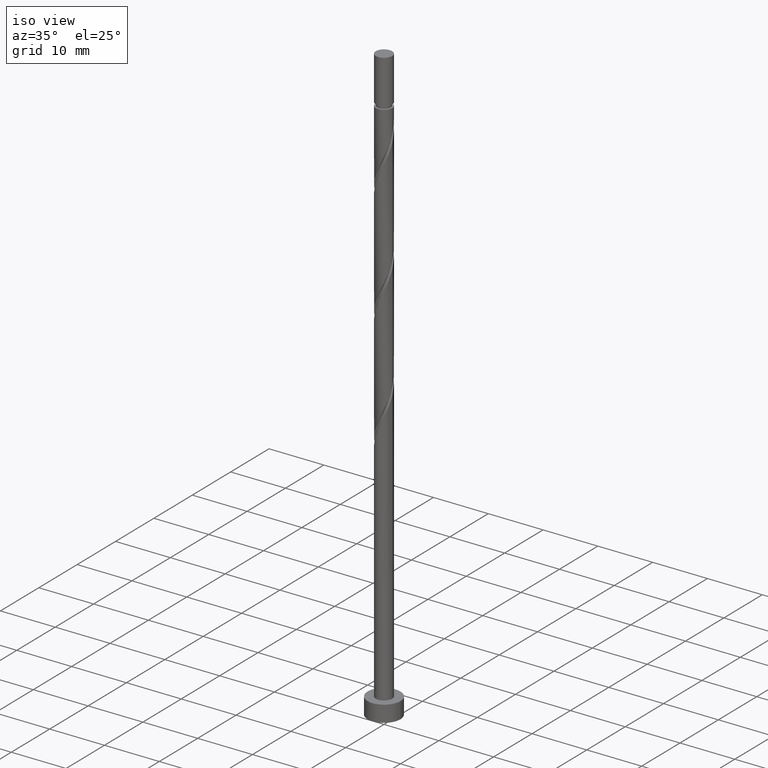
[diagram: clean part render]
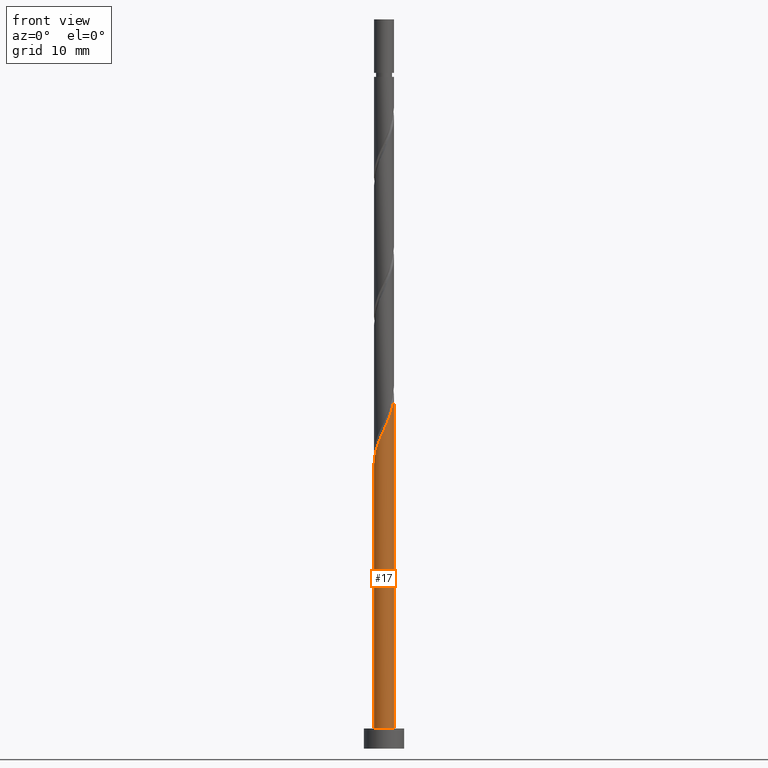
[diagram: tour spotlight — one face highlighted and labeled with its STEP entity id]
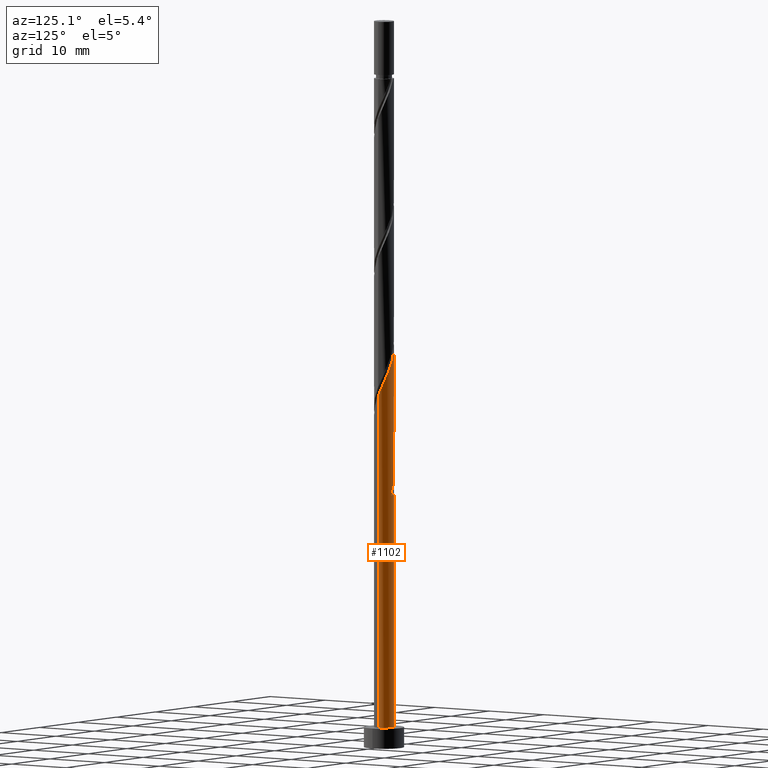
[diagram: tour spotlight — one face highlighted and labeled with its STEP entity id]
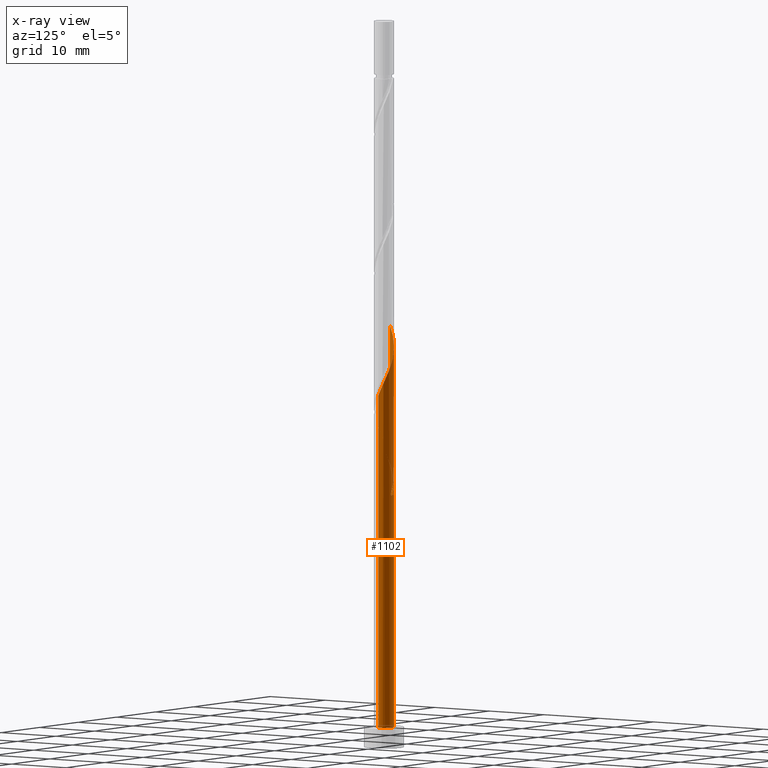
[diagram: x-ray of the same camera — body ghosted, this tour face saturated]
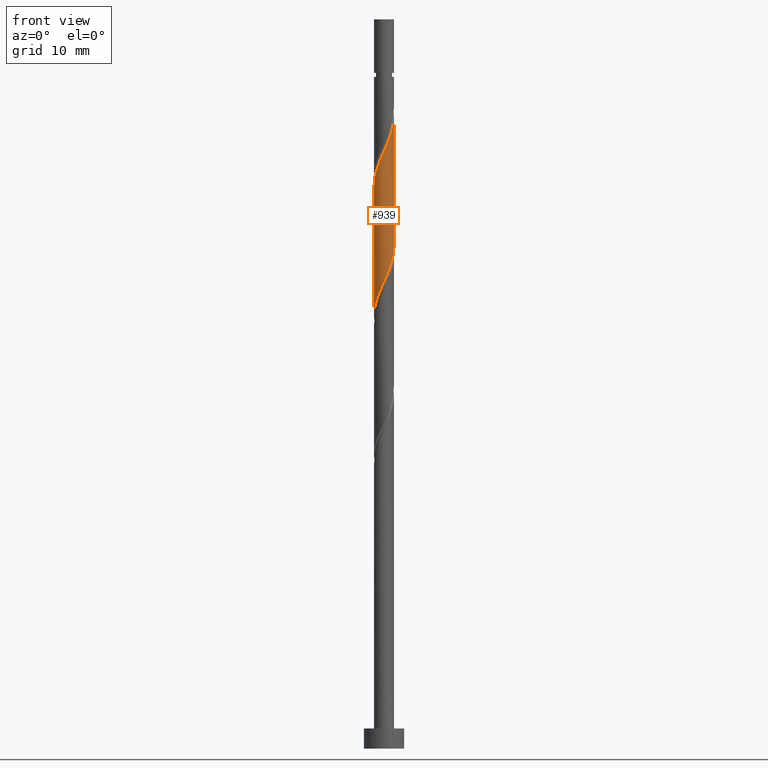
[diagram: tour spotlight — one face highlighted and labeled with its STEP entity id]
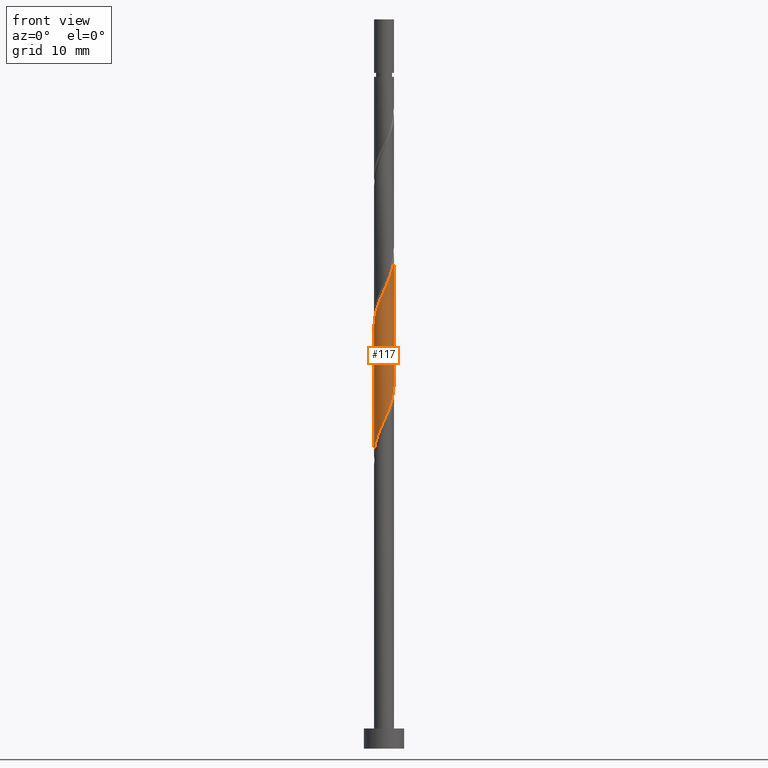
[diagram: tour spotlight — one face highlighted and labeled with its STEP entity id]
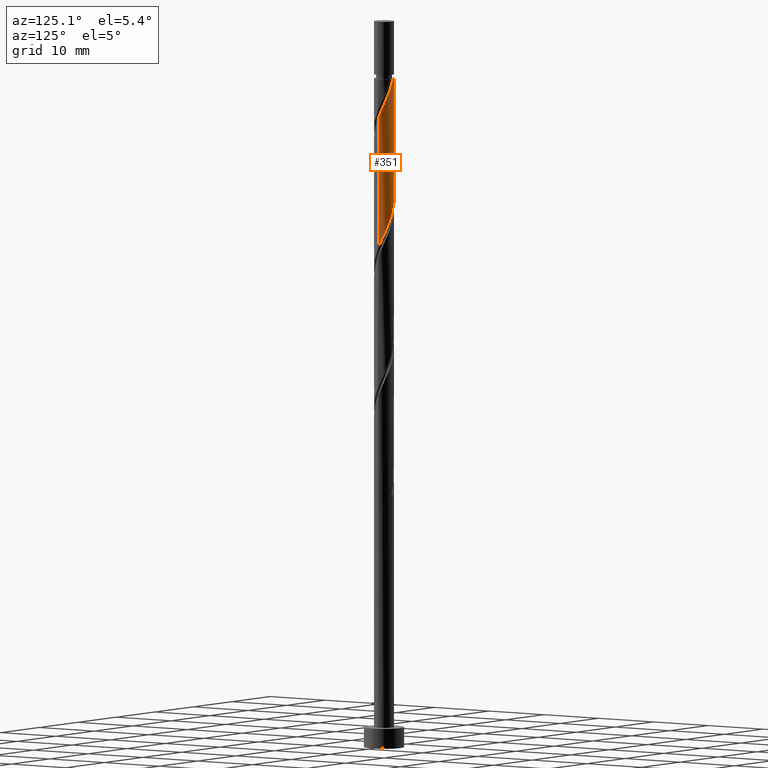
[diagram: tour spotlight — one face highlighted and labeled with its STEP entity id]
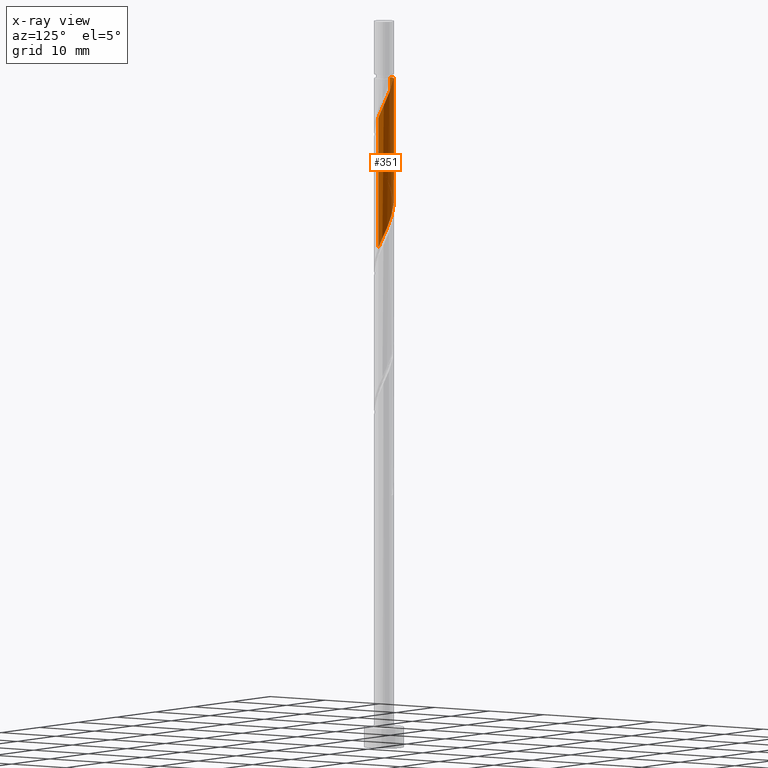
[diagram: x-ray of the same camera — body ghosted, this tour face saturated]
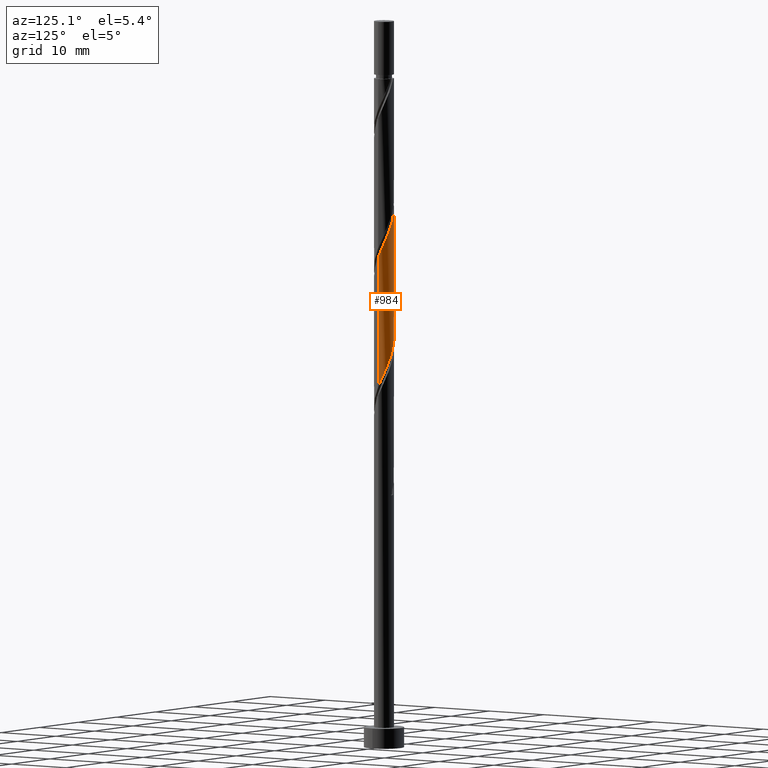
[diagram: tour spotlight — one face highlighted and labeled with its STEP entity id]
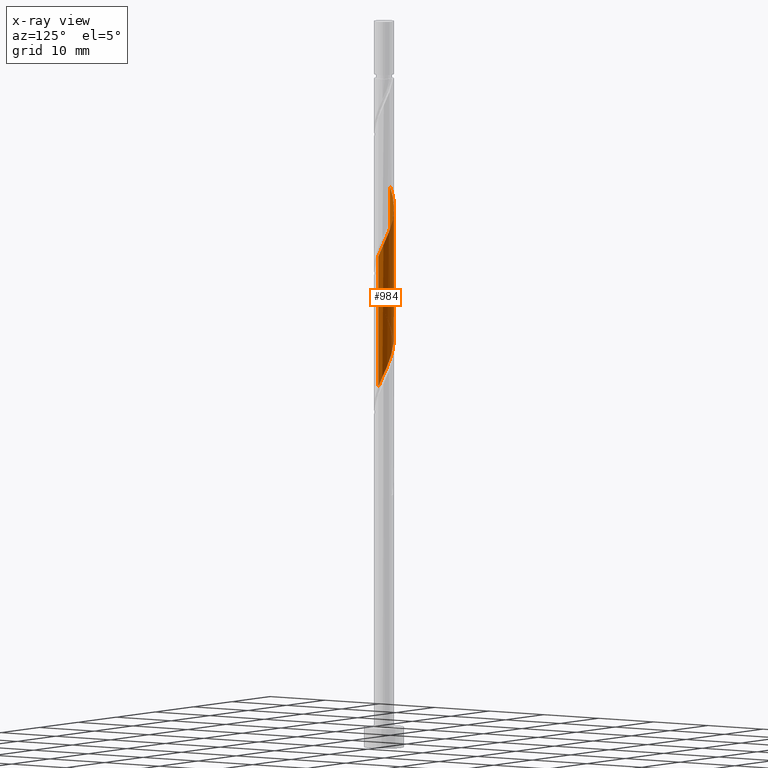
[diagram: x-ray of the same camera — body ghosted, this tour face saturated]
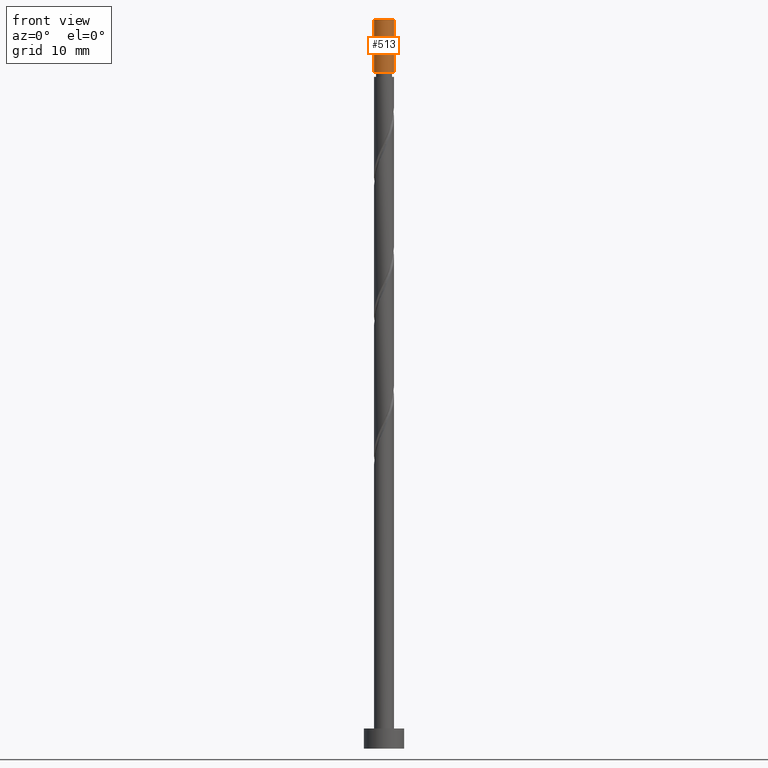
[diagram: tour spotlight — one face highlighted and labeled with its STEP entity id]
A machine part: a face-by-face anatomy tour. The part has 21 B-rep faces; the first image is the clean iso view, then the 7 largest visible faces are spotlighted one at a time (largest first), each with its STEP entity span.

Face 1 — front view, entity #17. In plain terms, the highlighted cylindrical surface (edge-blend (fillet) strip) has radius 1.5 mm, axis along (-0, -0, -1).
Definition (entity closure, byte-faithful):
#17 = ADVANCED_FACE ( 'NONE', ( #634 ), #648, .T. ) ;
#20 = VECTOR ( 'NONE', #1212, 1000.000000000000000 ) ;
#41 = CARTESIAN_POINT ( 'NONE',  ( -1.422722841493179402, -0.5313213584090547004, 43.64275725956397878 ) ) ;
#48 = CARTESIAN_POINT ( 'NONE',  ( -1.500000000000002665, -0.1507556722888832856, 42.79142606016824857 ) ) ;
#57 = ORIENTED_EDGE ( 'NONE', *, *, #1281, .F. ) ;
#58 = CARTESIAN_POINT ( 'NONE',  ( -1.500000000000000222, 0.000000000000000000, 3.000000000000000000 ) ) ;
#59 = CARTESIAN_POINT ( 'NONE',  ( 0.06567110385491718716, -1.517277158506825430, 47.80942392623063597 ) ) ;
#67 = EDGE_LOOP ( 'NONE', ( #1057, #57, #221, #1099 ) ) ;
#69 = CARTESIAN_POINT ( 'NONE',  ( 1.364706664255441293, -0.6225557971272882574, 51.45525725956398588 ) ) ;
#91 = DIRECTION ( 'NONE',  ( -0.000000000000000000, -0.000000000000000000, -1.000000000000000000 ) ) ;
#167 = CARTESIAN_POINT ( 'NONE',  ( -1.305812670777222406, -0.7381417674387932282, 44.16359059289731448 ) ) ;
#176 = CARTESIAN_POINT ( 'NONE',  ( -0.1703681960235538806, -1.490293487130534222, 47.28859059289731448 ) ) ;
#189 = EDGE_CURVE ( 'NONE', #816, #801, #448, .T. ) ;
#205 = VERTEX_POINT ( 'NONE', #441 ) ;
#221 = ORIENTED_EDGE ( 'NONE', *, *, #189, .T. ) ;
#263 = EDGE_CURVE ( 'NONE', #205, #664, #703, .T. ) ;
#287 = CARTESIAN_POINT ( 'NONE',  ( 1.500000000000002220, -0.08546060616965187040, 52.68427706221977758 ) ) ;
#307 = AXIS2_PLACEMENT_3D ( 'NONE', #520, #541, #1494 ) ;
#404 = CARTESIAN_POINT ( 'NONE',  ( -0.6225557971272882574, -1.364706664255441293, 46.24692392623064308 ) ) ;
#441 = CARTESIAN_POINT ( 'NONE',  ( 1.500000000000002442, 1.004537886474785654E-15, 52.87378815142705690 ) ) ;
#448 = LINE ( 'NONE', #1181, #934 ) ;
#520 = CARTESIAN_POINT ( 'NONE',  ( 0.000000000000000000, 0.000000000000000000, 109.0000000000000000 ) ) ;
#522 = CARTESIAN_POINT ( 'NONE',  ( -1.188902500061264744, -0.9449621764685313119, 44.68442392623065729 ) ) ;
#541 = DIRECTION ( 'NONE',  ( -0.000000000000000000, -0.000000000000000000, -1.000000000000000000 ) ) ;
#543 = CARTESIAN_POINT ( 'NONE',  ( 0.5313213584090545893, -1.422722841493179402, 48.85109059289731448 ) ) ;
#574 = CARTESIAN_POINT ( 'NONE',  ( -1.500000000000002442, -1.206944774048063375E-15, 42.45712148476038550 ) ) ;
#616 = DIRECTION ( 'NONE',  ( 0.000000000000000000, 0.000000000000000000, 1.000000000000000000 ) ) ;
#634 = FACE_OUTER_BOUND ( 'NONE', #67, .T. ) ;
#648 = CYLINDRICAL_SURFACE ( 'NONE', #307, 1.500000000000000222 ) ;
#650 = CARTESIAN_POINT ( 'NONE',  ( 1.490293487130534222, -0.1703681960235539916, 52.49692392623065018 ) ) ;
#664 = VERTEX_POINT ( 'NONE', #1376 ) ;
#670 = CARTESIAN_POINT ( 'NONE',  ( 1.266103512756640459, -0.8387040983525509974, 50.93442392623065729 ) ) ;
#703 = LINE ( 'NONE', #1195, #20 ) ;
#801 = VERTEX_POINT ( 'NONE', #58 ) ;
#816 = VERTEX_POINT ( 'NONE', #574 ) ;
#880 = CARTESIAN_POINT ( 'NONE',  ( -0.4064074959020250732, -1.463309815754243015, 46.76775725956398588 ) ) ;
#908 = CARTESIAN_POINT ( 'NONE',  ( -1.500000000000002442, -1.206944774048063375E-15, 42.45712148476038550 ) ) ;
#934 = VECTOR ( 'NONE', #91, 1000.000000000000000 ) ;
#944 = CIRCLE ( 'NONE', #1070, 1.500000000000000222 ) ;
#978 = CARTESIAN_POINT ( 'NONE',  ( 0.000000000000000000, 0.000000000000000000, 3.000000000000000000 ) ) ;
#1041 = CARTESIAN_POINT ( 'NONE',  ( 1.500000000000002442, 1.004537886474785654E-15, 52.87378815142704980 ) ) ;
#1057 = ORIENTED_EDGE ( 'NONE', *, *, #263, .F. ) ;
#1070 = AXIS2_PLACEMENT_3D ( 'NONE', #978, #616, #1363 ) ;
#1076 = EDGE_CURVE ( 'NONE', #801, #664, #944, .T. ) ;
#1099 = ORIENTED_EDGE ( 'NONE', *, *, #1076, .T. ) ;
#1130 = CARTESIAN_POINT ( 'NONE',  ( -1.470000000000002638, -0.2984962311319860895, 43.12192392623065729 ) ) ;
#1149 = CARTESIAN_POINT ( 'NONE',  ( -1.013803299206907926, -1.105532844612585830, 45.20525725956399299 ) ) ;
#1168 = CARTESIAN_POINT ( 'NONE',  ( 1.463309815754243015, -0.4064074959020250732, 51.97609059289730027 ) ) ;
#1181 = CARTESIAN_POINT ( 'NONE',  ( -1.500000000000000222, 0.000000000000000000, 109.0000000000000000 ) ) ;
#1195 = CARTESIAN_POINT ( 'NONE',  ( 1.500000000000000222, 1.836970198721030181E-16, 109.0000000000000000 ) ) ;
#1212 = DIRECTION ( 'NONE',  ( -0.000000000000000000, -0.000000000000000000, -1.000000000000000000 ) ) ;
#1281 = EDGE_CURVE ( 'NONE', #816, #205, #1518, .T. ) ;
#1363 = DIRECTION ( 'NONE',  ( 1.000000000000000000, 0.000000000000000000, 0.000000000000000000 ) ) ;
#1376 = CARTESIAN_POINT ( 'NONE',  ( 1.500000000000000222, 1.836970198721030181E-16, 3.000000000000000000 ) ) ;
#1377 = CARTESIAN_POINT ( 'NONE',  ( 1.105532844612585830, -1.013803299206907926, 50.41359059289729316 ) ) ;
#1396 = CARTESIAN_POINT ( 'NONE',  ( 0.2984962311319860340, -1.470000000000002638, 48.33025725956398588 ) ) ;
#1494 = DIRECTION ( 'NONE',  ( -1.000000000000000000, 0.000000000000000000, 0.000000000000000000 ) ) ;
#1496 = CARTESIAN_POINT ( 'NONE',  ( -0.8387040983525509974, -1.266103512756640459, 45.72609059289732159 ) ) ;
#1516 = CARTESIAN_POINT ( 'NONE',  ( 0.7381417674387931172, -1.305812670777222406, 49.37192392623064308 ) ) ;
#1518 =( BOUNDED_CURVE ( )  B_SPLINE_CURVE ( 2, ( #908, #48, #1130, #41, #167, #522, #1149, #1496, #404, #880, #176, #59, #1396, #543, #1516, #1525, #1377, #670, #69, #1168, #650, #287, #1041 ),
 .UNSPECIFIED., .F., .T. ) 
 B_SPLINE_CURVE_WITH_KNOTS ( ( 3, 2, 2, 2, 2, 2, 2, 2, 2, 2, 2, 3 ),
 ( 0.05453220231385529082, 0.06250000000000000000, 0.07499999999999995559, 0.08750000000000002220, 0.09999999999999997780, 0.1125000000000000444, 0.1250000000000000000, 0.1374999999999999556, 0.1500000000000000222, 0.1624999999999999778, 0.1750000000000000444, 0.1795322023138551104 ),
 .UNSPECIFIED. ) 
 CURVE ( )  GEOMETRIC_REPRESENTATION_ITEM ( )  RATIONAL_B_SPLINE_CURVE ( ( 0.9039174447099378451, 0.9019565955404671431, 0.9090909090909156109, 0.8978984914501316750, 0.9090909090909156109, 0.8978984914501316750, 0.9090909090909156109, 0.8978984914501316750, 0.9090909090909156109, 0.8978984914501316750, 0.9090909090909156109, 0.8978984914501316750, 0.9090909090909156109, 0.8978984914501316750, 0.9090909090909156109, 0.8978984914501316750, 0.9090909090909156109, 0.8978984914501316750, 0.9090909090909156109, 0.8978984914501316750, 0.9090909090909156109, 0.9050328050005800318, 0.9039174447099378451 ) ) 
 REPRESENTATION_ITEM ( '' )  );
#1525 = CARTESIAN_POINT ( 'NONE',  ( 0.9449621764685313119, -1.188902500061264744, 49.89275725956396457 ) ) ;

Face 2 — auxiliary view, entity #1102. An x-ray twin of the same camera follows (body ghosted, this face saturated) — the face is partly hidden behind the body. In plain terms, the highlighted cylindrical surface (edge-blend (fillet) strip) has radius 1.5 mm, axis along (-0, -0, -1).
Definition (entity closure, byte-faithful):
#20 = VECTOR ( 'NONE', #1212, 1000.000000000000000 ) ;
#29 = EDGE_CURVE ( 'NONE', #227, #816, #808, .T. ) ;
#31 = CARTESIAN_POINT ( 'NONE',  ( -1.105532844612586052, 1.013803299206907926, 39.99692392623064308 ) ) ;
#50 = EDGE_CURVE ( 'NONE', #689, #1361, #1174, .T. ) ;
#53 = CARTESIAN_POINT ( 'NONE',  ( -0.1703681960235532977, 1.490293487130531780, 38.95525725956397878 ) ) ;
#58 = CARTESIAN_POINT ( 'NONE',  ( -1.500000000000000222, 0.000000000000000000, 3.000000000000000000 ) ) ;
#78 = CARTESIAN_POINT ( 'NONE',  ( -1.422722841493176960, 0.5313213584090544783, 42.60109059289732159 ) ) ;
#86 = CARTESIAN_POINT ( 'NONE',  ( -0.6225557971272870361, 1.364706664255440183, 39.99692392623064308 ) ) ;
#91 = DIRECTION ( 'NONE',  ( -0.000000000000000000, -0.000000000000000000, -1.000000000000000000 ) ) ;
#107 = ORIENTED_EDGE ( 'NONE', *, *, #819, .T. ) ;
#150 = CYLINDRICAL_SURFACE ( 'NONE', #357, 1.500000000000000222 ) ;
#171 = CARTESIAN_POINT ( 'NONE',  ( -1.500000000000000888, -6.776882458009044584E-15, 43.78672636770094329 ) ) ;
#186 = AXIS2_PLACEMENT_3D ( 'NONE', #782, #1159, #799 ) ;
#189 = EDGE_CURVE ( 'NONE', #816, #801, #448, .T. ) ;
#194 = CARTESIAN_POINT ( 'NONE',  ( -0.2984962311319857564, 1.470000000000002860, 58.74692392623064308 ) ) ;
#202 = CARTESIAN_POINT ( 'NONE',  ( -0.8387040983525495541, 1.266103512756638905, 40.51775725956398588 ) ) ;
#205 = VERTEX_POINT ( 'NONE', #441 ) ;
#227 = VERTEX_POINT ( 'NONE', #811 ) ;
#263 = EDGE_CURVE ( 'NONE', #205, #664, #703, .T. ) ;
#296 = CARTESIAN_POINT ( 'NONE',  ( 1.422722841493179402, 0.5313213584090544783, 54.05942392623062887 ) ) ;
#305 = CARTESIAN_POINT ( 'NONE',  ( -0.7381417674387932282, 1.305812670777222184, 59.78859059289731448 ) ) ;
#316 = CARTESIAN_POINT ( 'NONE',  ( 0.000000000000000000, 0.000000000000000000, 3.000000000000000000 ) ) ;
#317 = CARTESIAN_POINT ( 'NONE',  ( -1.470000000000000639, 0.2984962311319860895, 43.12192392623066439 ) ) ;
#325 = CARTESIAN_POINT ( 'NONE',  ( 1.470000000000002860, 0.2984962311319858674, 53.53859059289731448 ) ) ;
#332 = ORIENTED_EDGE ( 'NONE', *, *, #189, .F. ) ;
#340 = CIRCLE ( 'NONE', #186, 1.500000000000000222 ) ;
#344 = ORIENTED_EDGE ( 'NONE', *, *, #50, .F. ) ;
#357 = AXIS2_PLACEMENT_3D ( 'NONE', #636, #961, #1455 ) ;
#395 = CARTESIAN_POINT ( 'NONE',  ( -1.490293487130534222, 0.1703681960235538528, 42.08025725956397878 ) ) ;
#402 = CARTESIAN_POINT ( 'NONE',  ( -0.7381417674387932282, 1.305812670777222184, 38.95525725956397878 ) ) ;
#408 = AXIS2_PLACEMENT_3D ( 'NONE', #316, #1548, #933 ) ;
#414 = CARTESIAN_POINT ( 'NONE',  ( -0.06567110385491700675, 1.517277158506825430, 58.22609059289730737 ) ) ;
#434 = CARTESIAN_POINT ( 'NONE',  ( -1.500000000000000888, -6.776882458009044584E-15, 43.78672636770094329 ) ) ;
#441 = CARTESIAN_POINT ( 'NONE',  ( 1.500000000000002442, 1.004537886474785654E-15, 52.87378815142705690 ) ) ;
#448 = LINE ( 'NONE', #1181, #934 ) ;
#495 = ORIENTED_EDGE ( 'NONE', *, *, #1301, .F. ) ;
#496 = CARTESIAN_POINT ( 'NONE',  ( -1.500000000000002442, -1.206944774048063375E-15, 63.29045481809371410 ) ) ;
#512 = CARTESIAN_POINT ( 'NONE',  ( -1.266103512756640459, 0.8387040983525509974, 40.51775725956400009 ) ) ;
#529 = CARTESIAN_POINT ( 'NONE',  ( -1.500000000000002220, 0.08546060616964827605, 42.26761039555309196 ) ) ;
#568 = CARTESIAN_POINT ( 'NONE',  ( -0.4064074959020240740, 1.463309815754240351, 39.47609059289731448 ) ) ;
#574 = CARTESIAN_POINT ( 'NONE',  ( -1.500000000000002442, -1.206944774048063375E-15, 42.45712148476038550 ) ) ;
#588 = ORIENTED_EDGE ( 'NONE', *, *, #1231, .F. ) ;
#636 = CARTESIAN_POINT ( 'NONE',  ( 0.000000000000000000, 0.000000000000000000, 109.0000000000000000 ) ) ;
#644 = CARTESIAN_POINT ( 'NONE',  ( 0.4064074959020251288, 1.463309815754243015, 57.18442392623067150 ) ) ;
#660 = CARTESIAN_POINT ( 'NONE',  ( 1.013803299206908148, 1.105532844612585830, 55.62192392623064308 ) ) ;
#664 = VERTEX_POINT ( 'NONE', #1376 ) ;
#687 = CARTESIAN_POINT ( 'NONE',  ( -1.305812670777220186, 0.7381417674387924510, 42.08025725956399299 ) ) ;
#689 = VERTEX_POINT ( 'NONE', #496 ) ;
#703 = LINE ( 'NONE', #1195, #20 ) ;
#733 = CARTESIAN_POINT ( 'NONE',  ( 0.2984962311319863670, 1.470000000000000639, 37.91359059289731448 ) ) ;
#749 = FACE_OUTER_BOUND ( 'NONE', #1393, .T. ) ;
#765 = CARTESIAN_POINT ( 'NONE',  ( -1.266103512756640459, 0.8387040983525509974, 61.35109059289731448 ) ) ;
#774 = CARTESIAN_POINT ( 'NONE',  ( 0.8387040983525509974, 1.266103512756640015, 56.14275725956397167 ) ) ;
#782 = CARTESIAN_POINT ( 'NONE',  ( 0.000000000000000000, 0.000000000000000000, 37.91359059289731448 ) ) ;
#790 = CARTESIAN_POINT ( 'NONE',  ( -1.500000000000002442, -1.206944774048063375E-15, 63.29045481809371410 ) ) ;
#799 = DIRECTION ( 'NONE',  ( -1.000000000000000000, 0.000000000000000000, 0.000000000000000000 ) ) ;
#801 = VERTEX_POINT ( 'NONE', #58 ) ;
#802 = CARTESIAN_POINT ( 'NONE',  ( 0.2984962311319863670, 1.470000000000000639, 37.91359059289731448 ) ) ;
#808 =( BOUNDED_CURVE ( )  B_SPLINE_CURVE ( 2, ( #1118, #1136, #402, #878, #31, #512, #994, #1485, #395, #529, #1022 ),
 .UNSPECIFIED., .F., .T. ) 
 B_SPLINE_CURVE_WITH_KNOTS ( ( 3, 2, 2, 2, 2, 3 ),
 ( 0.000000000000000000, 0.01249999999999995559, 0.02500000000000002220, 0.03749999999999997780, 0.05000000000000004441, 0.05453220231385529082 ),
 .UNSPECIFIED. ) 
 CURVE ( )  GEOMETRIC_REPRESENTATION_ITEM ( )  RATIONAL_B_SPLINE_CURVE ( ( 0.9090909090909156109, 0.8978984914501316750, 0.9090909090909156109, 0.8978984914501316750, 0.9090909090909156109, 0.8978984914501316750, 0.9090909090909156109, 0.8978984914501316750, 0.9090909090909156109, 0.9050328050005800318, 0.9039174447099378451 ) ) 
 REPRESENTATION_ITEM ( '' )  );
#811 = CARTESIAN_POINT ( 'NONE',  ( -0.2984962311319858119, 1.470000000000002860, 37.91359059289731448 ) ) ;
#816 = VERTEX_POINT ( 'NONE', #574 ) ;
#819 = EDGE_CURVE ( 'NONE', #664, #801, #1012, .T. ) ;
#878 = CARTESIAN_POINT ( 'NONE',  ( -0.9449621764685313119, 1.188902500061264744, 39.47609059289730737 ) ) ;
#889 = CARTESIAN_POINT ( 'NONE',  ( -1.105532844612586052, 1.013803299206907926, 60.83025725956398588 ) ) ;
#899 = CARTESIAN_POINT ( 'NONE',  ( 1.188902500061265188, 0.9449621764685313119, 55.10109059289731448 ) ) ;
#906 = ORIENTED_EDGE ( 'NONE', *, *, #29, .F. ) ;
#920 = CARTESIAN_POINT ( 'NONE',  ( 1.500000000000002442, 1.004537886474785654E-15, 52.87378815142704980 ) ) ;
#933 = DIRECTION ( 'NONE',  ( 1.000000000000000000, 0.000000000000000000, 0.000000000000000000 ) ) ;
#934 = VECTOR ( 'NONE', #91, 1000.000000000000000 ) ;
#961 = DIRECTION ( 'NONE',  ( -0.000000000000000000, -0.000000000000000000, -1.000000000000000000 ) ) ;
#987 = VERTEX_POINT ( 'NONE', #733 ) ;
#994 = CARTESIAN_POINT ( 'NONE',  ( -1.364706664255441737, 0.6225557971272878133, 41.03859059289731448 ) ) ;
#1003 = CARTESIAN_POINT ( 'NONE',  ( -1.490293487130534222, 0.1703681960235538528, 62.91359059289730737 ) ) ;
#1011 = CARTESIAN_POINT ( 'NONE',  ( 1.305812670777222406, 0.7381417674387931172, 54.58025725956397878 ) ) ;
#1012 = CIRCLE ( 'NONE', #408, 1.500000000000000222 ) ;
#1015 = ORIENTED_EDGE ( 'NONE', *, *, #1191, .T. ) ;
#1022 = CARTESIAN_POINT ( 'NONE',  ( -1.500000000000002442, -1.206944774048063375E-15, 42.45712148476038550 ) ) ;
#1024 = CARTESIAN_POINT ( 'NONE',  ( -0.9449621764685313119, 1.188902500061264744, 60.30942392623063597 ) ) ;
#1034 = CARTESIAN_POINT ( 'NONE',  ( 0.6225557971272883684, 1.364706664255441293, 56.66359059289731448 ) ) ;
#1048 = CARTESIAN_POINT ( 'NONE',  ( -1.013803299206906372, 1.105532844612584720, 41.03859059289731448 ) ) ;
#1073 =( BOUNDED_CURVE ( )  B_SPLINE_CURVE ( 2, ( #434, #1406, #317, #78, #687, #1176, #1048, #202, #86, #568, #53, #1154, #802 ),
 .UNSPECIFIED., .F., .T. ) 
 B_SPLINE_CURVE_WITH_KNOTS ( ( 3, 2, 2, 2, 2, 2, 3 ),
 ( 0.9295322023138548051, 0.9375000000000000000, 0.9499999999999999556, 0.9625000000000000222, 0.9749999999999999778, 0.9875000000000000444, 1.000000000000000000 ),
 .UNSPECIFIED. ) 
 CURVE ( )  GEOMETRIC_REPRESENTATION_ITEM ( )  RATIONAL_B_SPLINE_CURVE ( ( 0.9039174447099322940, 0.9019565955404612589, 0.9090909090909099488, 0.8978984914501261239, 0.9090909090909099488, 0.8978984914501261239, 0.9090909090909099488, 0.8978984914501261239, 0.9090909090909099488, 0.8978984914501261239, 0.9090909090909099488, 0.8978984914501261239, 0.9090909090909099488 ) ) 
 REPRESENTATION_ITEM ( '' )  );
#1102 = ADVANCED_FACE ( 'NONE', ( #749 ), #150, .T. ) ;
#1108 = ORIENTED_EDGE ( 'NONE', *, *, #263, .T. ) ;
#1118 = CARTESIAN_POINT ( 'NONE',  ( -0.2984962311319858119, 1.470000000000002860, 37.91359059289732159 ) ) ;
#1136 = CARTESIAN_POINT ( 'NONE',  ( -0.5313213584090548114, 1.422722841493179402, 38.43442392623063597 ) ) ;
#1154 = CARTESIAN_POINT ( 'NONE',  ( 0.06567110385491756186, 1.517277158506823431, 38.43442392623065018 ) ) ;
#1159 = DIRECTION ( 'NONE',  ( 0.000000000000000000, -0.000000000000000000, -1.000000000000000000 ) ) ;
#1174 = LINE ( 'NONE', #1560, #1426 ) ;
#1176 = CARTESIAN_POINT ( 'NONE',  ( -1.188902500061262968, 0.9449621764685303127, 41.55942392623064308 ) ) ;
#1181 = CARTESIAN_POINT ( 'NONE',  ( -1.500000000000000222, 0.000000000000000000, 109.0000000000000000 ) ) ;
#1191 = EDGE_CURVE ( 'NONE', #227, #987, #340, .T. ) ;
#1195 = CARTESIAN_POINT ( 'NONE',  ( 1.500000000000000222, 1.836970198721030181E-16, 109.0000000000000000 ) ) ;
#1212 = DIRECTION ( 'NONE',  ( -0.000000000000000000, -0.000000000000000000, -1.000000000000000000 ) ) ;
#1231 = EDGE_CURVE ( 'NONE', #205, #689, #1566, .T. ) ;
#1265 = CARTESIAN_POINT ( 'NONE',  ( -0.5313213584090548114, 1.422722841493179402, 59.26775725956397878 ) ) ;
#1273 = CARTESIAN_POINT ( 'NONE',  ( -1.463309815754242571, 0.4064074959020249067, 62.39275725956397878 ) ) ;
#1280 = CARTESIAN_POINT ( 'NONE',  ( -1.364706664255441737, 0.6225557971272878133, 61.87192392623064308 ) ) ;
#1288 = CARTESIAN_POINT ( 'NONE',  ( -1.500000000000002220, 0.08546060616965012180, 63.10094372888642766 ) ) ;
#1295 = CARTESIAN_POINT ( 'NONE',  ( 1.500000000000002887, 0.1507556722888796219, 53.20809272683490576 ) ) ;
#1301 = EDGE_CURVE ( 'NONE', #1361, #987, #1073, .T. ) ;
#1302 = DIRECTION ( 'NONE',  ( -0.000000000000000000, -0.000000000000000000, -1.000000000000000000 ) ) ;
#1361 = VERTEX_POINT ( 'NONE', #171 ) ;
#1376 = CARTESIAN_POINT ( 'NONE',  ( 1.500000000000000222, 1.836970198721030181E-16, 3.000000000000000000 ) ) ;
#1393 = EDGE_LOOP ( 'NONE', ( #588, #1108, #107, #332, #906, #1015, #495, #344 ) ) ;
#1406 = CARTESIAN_POINT ( 'NONE',  ( -1.500000000000001998, 0.1507556722888743483, 43.45242179229309443 ) ) ;
#1426 = VECTOR ( 'NONE', #1302, 1000.000000000000000 ) ;
#1455 = DIRECTION ( 'NONE',  ( -1.000000000000000000, 0.000000000000000000, 0.000000000000000000 ) ) ;
#1485 = CARTESIAN_POINT ( 'NONE',  ( -1.463309815754242571, 0.4064074959020249067, 41.55942392623065018 ) ) ;
#1504 = CARTESIAN_POINT ( 'NONE',  ( 0.1703681960235541304, 1.490293487130534222, 57.70525725956399299 ) ) ;
#1548 = DIRECTION ( 'NONE',  ( 0.000000000000000000, 0.000000000000000000, 1.000000000000000000 ) ) ;
#1560 = CARTESIAN_POINT ( 'NONE',  ( -1.500000000000000222, 0.000000000000000000, 109.0000000000000000 ) ) ;
#1566 =( BOUNDED_CURVE ( )  B_SPLINE_CURVE ( 2, ( #920, #1295, #325, #296, #1011, #899, #660, #774, #1034, #644, #1504, #414, #194, #1265, #305, #1024, #889, #765, #1280, #1273, #1003, #1288, #790 ),
 .UNSPECIFIED., .F., .T. ) 
 B_SPLINE_CURVE_WITH_KNOTS ( ( 3, 2, 2, 2, 2, 2, 2, 2, 2, 2, 2, 3 ),
 ( 0.1795322023138551104, 0.1875000000000000000, 0.1999999999999999556, 0.2125000000000000222, 0.2249999999999999778, 0.2375000000000000444, 0.2500000000000000000, 0.2624999999999999556, 0.2750000000000000222, 0.2874999999999999778, 0.3000000000000000444, 0.3045322023138551937 ),
 .UNSPECIFIED. ) 
 CURVE ( )  GEOMETRIC_REPRESENTATION_ITEM ( )  RATIONAL_B_SPLINE_CURVE ( ( 0.9039174447099378451, 0.9019565955404671431, 0.9090909090909156109, 0.8978984914501316750, 0.9090909090909156109, 0.8978984914501316750, 0.9090909090909156109, 0.8978984914501316750, 0.9090909090909156109, 0.8978984914501316750, 0.9090909090909156109, 0.8978984914501316750, 0.9090909090909156109, 0.8978984914501316750, 0.9090909090909156109, 0.8978984914501316750, 0.9090909090909156109, 0.8978984914501316750, 0.9090909090909156109, 0.8978984914501316750, 0.9090909090909156109, 0.9050328050005800318, 0.9039174447099378451 ) ) 
 REPRESENTATION_ITEM ( '' )  );

Face 3 — front view, entity #939. In plain terms, the highlighted cylindrical surface (edge-blend (fillet) strip) has radius 1.5 mm, axis along (-0, -0, -1).
Definition (entity closure, byte-faithful):
#7 = CARTESIAN_POINT ( 'NONE',  ( -1.500000000000000222, 0.000000000000000000, 109.0000000000000000 ) ) ;
#25 = CARTESIAN_POINT ( 'NONE',  ( -1.266103512756638905, -0.8387040983525493321, 66.55942392623063597 ) ) ;
#73 = CARTESIAN_POINT ( 'NONE',  ( 1.364706664255441293, -0.6225557971272882574, 93.12192392623065018 ) ) ;
#88 = CARTESIAN_POINT ( 'NONE',  ( 0.06567110385491718716, -1.517277158506825430, 89.47609059289729316 ) ) ;
#113 = CARTESIAN_POINT ( 'NONE',  ( 0.6225557971272867031, -1.364706664255440183, 71.24692392623063597 ) ) ;
#124 = CARTESIAN_POINT ( 'NONE',  ( 1.422722841493176738, -0.5313213584090545893, 73.85109059289730737 ) ) ;
#130 = CARTESIAN_POINT ( 'NONE',  ( 1.470000000000000639, -0.2984962311319863115, 74.37192392623063597 ) ) ;
#140 = CARTESIAN_POINT ( 'NONE',  ( -1.500000000000000222, -2.571317127319802737E-15, 64.62005970103423635 ) ) ;
#179 = VERTEX_POINT ( 'NONE', #692 ) ;
#235 = CARTESIAN_POINT ( 'NONE',  ( -0.5313213584090544783, -1.422722841493176738, 68.64275725956395036 ) ) ;
#243 = CARTESIAN_POINT ( 'NONE',  ( -0.2984962311319861450, -1.470000000000000639, 69.16359059289729316 ) ) ;
#247 = CARTESIAN_POINT ( 'NONE',  ( 1.499999999999999556, -0.1507556722888849232, 74.70242179229305179 ) ) ;
#253 = VERTEX_POINT ( 'NONE', #342 ) ;
#255 = CARTESIAN_POINT ( 'NONE',  ( -1.500000000000000888, -0.08546060616964644419, 64.80957079024150858 ) ) ;
#262 = FACE_OUTER_BOUND ( 'NONE', #438, .T. ) ;
#277 = DIRECTION ( 'NONE',  ( -0.000000000000000000, -0.000000000000000000, -1.000000000000000000 ) ) ;
#312 = CARTESIAN_POINT ( 'NONE',  ( 0.5313213584090545893, -1.422722841493179402, 90.51775725956396457 ) ) ;
#321 = CARTESIAN_POINT ( 'NONE',  ( 0.2984962311319860340, -1.470000000000002638, 89.99692392623062176 ) ) ;
#327 = CARTESIAN_POINT ( 'NONE',  ( -1.013803299206907926, -1.105532844612585830, 86.87192392623062176 ) ) ;
#342 = CARTESIAN_POINT ( 'NONE',  ( 1.500000000000000888, -1.791675782593099320E-15, 75.03672636770090776 ) ) ;
#360 = CARTESIAN_POINT ( 'NONE',  ( 1.500000000000000888, -1.791675782593099320E-15, 75.03672636770092197 ) ) ;
#368 = ORIENTED_EDGE ( 'NONE', *, *, #884, .F. ) ;
#380 = CYLINDRICAL_SURFACE ( 'NONE', #1156, 1.500000000000000222 ) ;
#429 = CARTESIAN_POINT ( 'NONE',  ( 0.7381417674387931172, -1.305812670777222406, 91.03859059289730737 ) ) ;
#438 = EDGE_LOOP ( 'NONE', ( #368, #936, #771, #871 ) ) ;
#480 = CARTESIAN_POINT ( 'NONE',  ( 1.500000000000000222, 1.836970198721030181E-16, 109.0000000000000000 ) ) ;
#489 = CARTESIAN_POINT ( 'NONE',  ( -1.490293487130532224, -0.1703681960235532145, 64.99692392623065018 ) ) ;
#533 = VECTOR ( 'NONE', #959, 1000.000000000000000 ) ;
#539 =( BOUNDED_CURVE ( )  B_SPLINE_CURVE ( 2, ( #360, #247, #130, #124, #1056, #815, #834, #955, #113, #1208, #1333, #1326, #243, #235, #595, #1079, #1239, #25, #1256, #758, #489, #255, #140 ),
 .UNSPECIFIED., .F., .T. ) 
 B_SPLINE_CURVE_WITH_KNOTS ( ( 3, 2, 2, 2, 2, 2, 2, 2, 2, 2, 2, 3 ),
 ( 0.5545322023138553602, 0.5625000000000000000, 0.5749999999999999556, 0.5875000000000000222, 0.5999999999999999778, 0.6125000000000000444, 0.6250000000000000000, 0.6374999999999999556, 0.6500000000000000222, 0.6624999999999999778, 0.6750000000000000444, 0.6795322023138553602 ),
 .UNSPECIFIED. ) 
 CURVE ( )  GEOMETRIC_REPRESENTATION_ITEM ( )  RATIONAL_B_SPLINE_CURVE ( ( 0.9039174447099321830, 0.9019565955404618141, 0.9090909090909099488, 0.8978984914501261239, 0.9090909090909099488, 0.8978984914501261239, 0.9090909090909099488, 0.8978984914501261239, 0.9090909090909099488, 0.8978984914501261239, 0.9090909090909099488, 0.8978984914501261239, 0.9090909090909099488, 0.8978984914501261239, 0.9090909090909099488, 0.8978984914501261239, 0.9090909090909099488, 0.8978984914501261239, 0.9090909090909099488, 0.8978984914501261239, 0.9090909090909099488, 0.9050328050005742586, 0.9039174447099321830 ) ) 
 REPRESENTATION_ITEM ( '' )  );
#549 = CARTESIAN_POINT ( 'NONE',  ( -1.422722841493179402, -0.5313213584090547004, 85.30942392623063597 ) ) ;
#564 = CARTESIAN_POINT ( 'NONE',  ( -1.500000000000002665, 1.656737857544236133E-15, 84.12378815142703559 ) ) ;
#595 = CARTESIAN_POINT ( 'NONE',  ( -0.7381417674387925620, -1.305812670777220186, 68.12192392623065018 ) ) ;
#606 = CARTESIAN_POINT ( 'NONE',  ( 0.000000000000000000, 0.000000000000000000, 109.0000000000000000 ) ) ;
#654 = CARTESIAN_POINT ( 'NONE',  ( 1.266103512756640459, -0.8387040983525509974, 92.60109059289727895 ) ) ;
#692 = CARTESIAN_POINT ( 'NONE',  ( -1.500000000000000444, -2.571317127319803131E-15, 64.62005970103423635 ) ) ;
#758 = CARTESIAN_POINT ( 'NONE',  ( -1.463309815754240351, -0.4064074959020240740, 65.51775725956397878 ) ) ;
#771 = ORIENTED_EDGE ( 'NONE', *, *, #1183, .T. ) ;
#787 = CARTESIAN_POINT ( 'NONE',  ( 1.463309815754243015, -0.4064074959020250732, 93.64275725956396457 ) ) ;
#795 = CARTESIAN_POINT ( 'NONE',  ( 0.9449621764685313119, -1.188902500061264744, 91.55942392623062176 ) ) ;
#815 = CARTESIAN_POINT ( 'NONE',  ( 1.188902500061262968, -0.9449621764685304237, 72.80942392623062176 ) ) ;
#834 = CARTESIAN_POINT ( 'NONE',  ( 1.013803299206906150, -1.105532844612584720, 72.28859059289730737 ) ) ;
#847 = DIRECTION ( 'NONE',  ( -0.000000000000000000, -0.000000000000000000, -1.000000000000000000 ) ) ;
#852 = VERTEX_POINT ( 'NONE', #1213 ) ;
#871 = ORIENTED_EDGE ( 'NONE', *, *, #910, .F. ) ;
#884 = EDGE_CURVE ( 'NONE', #852, #253, #1571, .T. ) ;
#902 = CARTESIAN_POINT ( 'NONE',  ( 1.105532844612585830, -1.013803299206907926, 92.08025725956397878 ) ) ;
#909 =( BOUNDED_CURVE ( )  B_SPLINE_CURVE ( 2, ( #1390, #1411, #1510, #549, #1521, #1530, #327, #1298, #916, #1179, #1164, #88, #321, #312, #429, #795, #902, #654, #73, #787, #1144, #1291, #1018 ),
 .UNSPECIFIED., .F., .T. ) 
 B_SPLINE_CURVE_WITH_KNOTS ( ( 3, 2, 2, 2, 2, 2, 2, 2, 2, 2, 2, 3 ),
 ( 0.5545322023138550271, 0.5625000000000000000, 0.5749999999999999556, 0.5875000000000000222, 0.5999999999999999778, 0.6125000000000000444, 0.6250000000000000000, 0.6374999999999999556, 0.6500000000000000222, 0.6624999999999999778, 0.6750000000000000444, 0.6795322023138551382 ),
 .UNSPECIFIED. ) 
 CURVE ( )  GEOMETRIC_REPRESENTATION_ITEM ( )  RATIONAL_B_SPLINE_CURVE ( ( 0.9039174447099380671, 0.9019565955404670321, 0.9090909090909156109, 0.8978984914501316750, 0.9090909090909156109, 0.8978984914501316750, 0.9090909090909156109, 0.8978984914501316750, 0.9090909090909156109, 0.8978984914501316750, 0.9090909090909156109, 0.8978984914501316750, 0.9090909090909156109, 0.8978984914501316750, 0.9090909090909156109, 0.8978984914501316750, 0.9090909090909156109, 0.8978984914501316750, 0.9090909090909156109, 0.8978984914501316750, 0.9090909090909156109, 0.9050328050005800318, 0.9039174447099378451 ) ) 
 REPRESENTATION_ITEM ( '' )  );
#910 = EDGE_CURVE ( 'NONE', #253, #179, #539, .T. ) ;
#916 = CARTESIAN_POINT ( 'NONE',  ( -0.6225557971272882574, -1.364706664255441293, 87.91359059289730737 ) ) ;
#936 = ORIENTED_EDGE ( 'NONE', *, *, #1418, .F. ) ;
#939 = ADVANCED_FACE ( 'NONE', ( #262 ), #380, .T. ) ;
#955 = CARTESIAN_POINT ( 'NONE',  ( 0.8387040983525493321, -1.266103512756638905, 71.76775725956396457 ) ) ;
#959 = DIRECTION ( 'NONE',  ( -0.000000000000000000, -0.000000000000000000, -1.000000000000000000 ) ) ;
#1018 = CARTESIAN_POINT ( 'NONE',  ( 1.500000000000002887, 2.323930931396892317E-16, 94.54045481809369278 ) ) ;
#1056 = CARTESIAN_POINT ( 'NONE',  ( 1.305812670777220186, -0.7381417674387927841, 73.33025725956399299 ) ) ;
#1079 = CARTESIAN_POINT ( 'NONE',  ( -0.9449621764685304237, -1.188902500061262968, 67.60109059289732159 ) ) ;
#1093 = LINE ( 'NONE', #7, #1379 ) ;
#1144 = CARTESIAN_POINT ( 'NONE',  ( 1.490293487130534222, -0.1703681960235539916, 94.16359059289729316 ) ) ;
#1156 = AXIS2_PLACEMENT_3D ( 'NONE', #606, #277, #1347 ) ;
#1164 = CARTESIAN_POINT ( 'NONE',  ( -0.1703681960235538806, -1.490293487130534222, 88.95525725956399299 ) ) ;
#1179 = CARTESIAN_POINT ( 'NONE',  ( -0.4064074959020250732, -1.463309815754243015, 88.43442392623065018 ) ) ;
#1183 = EDGE_CURVE ( 'NONE', #1319, #179, #1093, .T. ) ;
#1208 = CARTESIAN_POINT ( 'NONE',  ( 0.4064074959020239630, -1.463309815754240351, 70.72609059289729316 ) ) ;
#1213 = CARTESIAN_POINT ( 'NONE',  ( 1.500000000000002887, 2.323930931396892317E-16, 94.54045481809370699 ) ) ;
#1239 = CARTESIAN_POINT ( 'NONE',  ( -1.105532844612584720, -1.013803299206906150, 67.08025725956399299 ) ) ;
#1256 = CARTESIAN_POINT ( 'NONE',  ( -1.364706664255440183, -0.6225557971272867031, 66.03859059289732159 ) ) ;
#1291 = CARTESIAN_POINT ( 'NONE',  ( 1.500000000000002220, -0.08546060616965135692, 94.35094372888643477 ) ) ;
#1298 = CARTESIAN_POINT ( 'NONE',  ( -0.8387040983525509974, -1.266103512756640459, 87.39275725956397878 ) ) ;
#1319 = VERTEX_POINT ( 'NONE', #564 ) ;
#1326 = CARTESIAN_POINT ( 'NONE',  ( -0.06567110385491777003, -1.517277158506823431, 69.68442392623063597 ) ) ;
#1333 = CARTESIAN_POINT ( 'NONE',  ( 0.1703681960235531034, -1.490293487130532224, 70.20525725956399299 ) ) ;
#1347 = DIRECTION ( 'NONE',  ( -1.000000000000000000, 0.000000000000000000, 0.000000000000000000 ) ) ;
#1379 = VECTOR ( 'NONE', #847, 1000.000000000000000 ) ;
#1390 = CARTESIAN_POINT ( 'NONE',  ( -1.500000000000002665, 1.656737857544236133E-15, 84.12378815142703559 ) ) ;
#1411 = CARTESIAN_POINT ( 'NONE',  ( -1.500000000000003331, -0.1507556722888783174, 84.45809272683487734 ) ) ;
#1418 = EDGE_CURVE ( 'NONE', #1319, #852, #909, .T. ) ;
#1510 = CARTESIAN_POINT ( 'NONE',  ( -1.470000000000002638, -0.2984962311319860895, 84.78859059289730737 ) ) ;
#1521 = CARTESIAN_POINT ( 'NONE',  ( -1.305812670777222406, -0.7381417674387932282, 85.83025725956399299 ) ) ;
#1530 = CARTESIAN_POINT ( 'NONE',  ( -1.188902500061264744, -0.9449621764685313119, 86.35109059289730737 ) ) ;
#1571 = LINE ( 'NONE', #480, #533 ) ;

Face 4 — front view, entity #117. In plain terms, the highlighted cylindrical surface (edge-blend (fillet) strip) has radius 1.5 mm, axis along (-0, -0, -1).
Definition (entity closure, byte-faithful):
#11 = CARTESIAN_POINT ( 'NONE',  ( 1.500000000000002220, -0.08546060616965135692, 73.51761039555309196 ) ) ;
#50 = EDGE_CURVE ( 'NONE', #689, #1361, #1174, .T. ) ;
#75 = EDGE_CURVE ( 'NONE', #747, #1361, #383, .T. ) ;
#76 = CARTESIAN_POINT ( 'NONE',  ( 1.422722841493176738, -0.5313213584090545893, 53.01775725956397878 ) ) ;
#97 = CARTESIAN_POINT ( 'NONE',  ( -1.105532844612584720, -1.013803299206906150, 46.24692392623065018 ) ) ;
#104 = CARTESIAN_POINT ( 'NONE',  ( -0.9449621764685304237, -1.188902500061262968, 46.76775725956397167 ) ) ;
#116 = CARTESIAN_POINT ( 'NONE',  ( -0.8387040983525509974, -1.266103512756640459, 66.55942392623065018 ) ) ;
#117 = ADVANCED_FACE ( 'NONE', ( #468 ), #566, .T. ) ;
#171 = CARTESIAN_POINT ( 'NONE',  ( -1.500000000000000888, -6.776882458009044584E-15, 43.78672636770094329 ) ) ;
#192 = CARTESIAN_POINT ( 'NONE',  ( -0.06567110385491777003, -1.517277158506823431, 48.85109059289731448 ) ) ;
#208 = CARTESIAN_POINT ( 'NONE',  ( -1.463309815754240351, -0.4064074959020240740, 44.68442392623064308 ) ) ;
#219 = EDGE_CURVE ( 'NONE', #822, #747, #1428, .T. ) ;
#224 = DIRECTION ( 'NONE',  ( -0.000000000000000000, -0.000000000000000000, -1.000000000000000000 ) ) ;
#282 = EDGE_CURVE ( 'NONE', #689, #822, #1204, .T. ) ;
#303 = ORIENTED_EDGE ( 'NONE', *, *, #282, .F. ) ;
#323 = DIRECTION ( 'NONE',  ( -1.000000000000000000, 0.000000000000000000, 0.000000000000000000 ) ) ;
#335 = DIRECTION ( 'NONE',  ( -0.000000000000000000, -0.000000000000000000, -1.000000000000000000 ) ) ;
#348 = CARTESIAN_POINT ( 'NONE',  ( -0.2984962311319861450, -1.470000000000000639, 48.33025725956398588 ) ) ;
#375 = CARTESIAN_POINT ( 'NONE',  ( -0.4064074959020250732, -1.463309815754243015, 67.60109059289732159 ) ) ;
#383 =( BOUNDED_CURVE ( )  B_SPLINE_CURVE ( 2, ( #1553, #818, #940, #76, #804, #697, #559, #918, #1421, #573, #927, #192, #348, #1414, #1315, #104, #97, #1310, #1441, #208, #1188, #1286, #579 ),
 .UNSPECIFIED., .F., .T. ) 
 B_SPLINE_CURVE_WITH_KNOTS ( ( 3, 2, 2, 2, 2, 2, 2, 2, 2, 2, 2, 3 ),
 ( 0.8045322023138551382, 0.8125000000000000000, 0.8249999999999999556, 0.8375000000000000222, 0.8499999999999999778, 0.8625000000000000444, 0.8750000000000000000, 0.8874999999999999556, 0.9000000000000000222, 0.9124999999999999778, 0.9250000000000000444, 0.9295322023138548051 ),
 .UNSPECIFIED. ) 
 CURVE ( )  GEOMETRIC_REPRESENTATION_ITEM ( )  RATIONAL_B_SPLINE_CURVE ( ( 0.9039174447099322940, 0.9019565955404615920, 0.9090909090909099488, 0.8978984914501261239, 0.9090909090909099488, 0.8978984914501261239, 0.9090909090909099488, 0.8978984914501261239, 0.9090909090909099488, 0.8978984914501261239, 0.9090909090909099488, 0.8978984914501261239, 0.9090909090909099488, 0.8978984914501261239, 0.9090909090909099488, 0.8978984914501261239, 0.9090909090909099488, 0.8978984914501261239, 0.9090909090909099488, 0.8978984914501261239, 0.9090909090909099488, 0.9050328050005747027, 0.9039174447099322940 ) ) 
 REPRESENTATION_ITEM ( '' )  );
#468 = FACE_OUTER_BOUND ( 'NONE', #556, .T. ) ;
#479 = CARTESIAN_POINT ( 'NONE',  ( -1.305812670777222406, -0.7381417674387932282, 64.99692392623066439 ) ) ;
#486 = CARTESIAN_POINT ( 'NONE',  ( 0.06567110385491718716, -1.517277158506825430, 68.64275725956397878 ) ) ;
#496 = CARTESIAN_POINT ( 'NONE',  ( -1.500000000000002442, -1.206944774048063375E-15, 63.29045481809371410 ) ) ;
#502 = CARTESIAN_POINT ( 'NONE',  ( -1.013803299206907926, -1.105532844612585830, 66.03859059289730737 ) ) ;
#556 = EDGE_LOOP ( 'NONE', ( #614, #303, #658, #1171 ) ) ;
#559 = CARTESIAN_POINT ( 'NONE',  ( 1.013803299206906150, -1.105532844612584720, 51.45525725956397878 ) ) ;
#566 = CYLINDRICAL_SURFACE ( 'NONE', #656, 1.500000000000000222 ) ;
#573 = CARTESIAN_POINT ( 'NONE',  ( 0.4064074959020239630, -1.463309815754240351, 49.89275725956397878 ) ) ;
#579 = CARTESIAN_POINT ( 'NONE',  ( -1.500000000000000888, -6.776882458009044584E-15, 43.78672636770094329 ) ) ;
#592 = CARTESIAN_POINT ( 'NONE',  ( 1.364706664255441293, -0.6225557971272882574, 72.28859059289730737 ) ) ;
#598 = CARTESIAN_POINT ( 'NONE',  ( -0.6225557971272882574, -1.364706664255441293, 67.08025725956397878 ) ) ;
#603 = CARTESIAN_POINT ( 'NONE',  ( -1.470000000000002638, -0.2984962311319860895, 63.95525725956398588 ) ) ;
#612 = CARTESIAN_POINT ( 'NONE',  ( 1.266103512756640459, -0.8387040983525509974, 71.76775725956397878 ) ) ;
#614 = ORIENTED_EDGE ( 'NONE', *, *, #219, .F. ) ;
#656 = AXIS2_PLACEMENT_3D ( 'NONE', #1046, #224, #323 ) ;
#658 = ORIENTED_EDGE ( 'NONE', *, *, #50, .T. ) ;
#659 = CARTESIAN_POINT ( 'NONE',  ( 1.500000000000002442, 1.004537886474785654E-15, 73.70712148476036418 ) ) ;
#689 = VERTEX_POINT ( 'NONE', #496 ) ;
#697 = CARTESIAN_POINT ( 'NONE',  ( 1.188902500061262968, -0.9449621764685304237, 51.97609059289730737 ) ) ;
#717 = CARTESIAN_POINT ( 'NONE',  ( -1.500000000000002887, -0.1507556722888814260, 63.62475939350157006 ) ) ;
#747 = VERTEX_POINT ( 'NONE', #1040 ) ;
#804 = CARTESIAN_POINT ( 'NONE',  ( 1.305812670777220186, -0.7381417674387927841, 52.49692392623065018 ) ) ;
#818 = CARTESIAN_POINT ( 'NONE',  ( 1.500000000000000444, -0.1507556722888807044, 53.86908845895973030 ) ) ;
#822 = VERTEX_POINT ( 'NONE', #659 ) ;
#825 = CARTESIAN_POINT ( 'NONE',  ( 1.490293487130534222, -0.1703681960235539916, 73.33025725956396457 ) ) ;
#837 = CARTESIAN_POINT ( 'NONE',  ( -1.422722841493179402, -0.5313213584090547004, 64.47609059289732159 ) ) ;
#918 = CARTESIAN_POINT ( 'NONE',  ( 0.8387040983525493321, -1.266103512756638905, 50.93442392623064308 ) ) ;
#927 = CARTESIAN_POINT ( 'NONE',  ( 0.1703681960235531034, -1.490293487130532224, 49.37192392623065018 ) ) ;
#940 = CARTESIAN_POINT ( 'NONE',  ( 1.470000000000000639, -0.2984962311319863115, 53.53859059289732159 ) ) ;
#952 = CARTESIAN_POINT ( 'NONE',  ( 0.7381417674387931172, -1.305812670777222406, 70.20525725956397878 ) ) ;
#958 = CARTESIAN_POINT ( 'NONE',  ( 1.105532844612585830, -1.013803299206907926, 71.24692392623066439 ) ) ;
#968 = CARTESIAN_POINT ( 'NONE',  ( 0.9449621764685313119, -1.188902500061264744, 70.72609059289729316 ) ) ;
#1040 = CARTESIAN_POINT ( 'NONE',  ( 1.500000000000000888, -1.791675782593099320E-15, 54.20339303436757916 ) ) ;
#1046 = CARTESIAN_POINT ( 'NONE',  ( 0.000000000000000000, 0.000000000000000000, 109.0000000000000000 ) ) ;
#1067 = CARTESIAN_POINT ( 'NONE',  ( 1.500000000000000222, 1.836970198721030181E-16, 109.0000000000000000 ) ) ;
#1083 = CARTESIAN_POINT ( 'NONE',  ( 0.5313213584090545893, -1.422722841493179402, 69.68442392623065018 ) ) ;
#1091 = CARTESIAN_POINT ( 'NONE',  ( 1.500000000000002442, 1.004537886474785654E-15, 73.70712148476036418 ) ) ;
#1106 = CARTESIAN_POINT ( 'NONE',  ( 1.463309815754243015, -0.4064074959020250732, 72.80942392623063597 ) ) ;
#1171 = ORIENTED_EDGE ( 'NONE', *, *, #75, .F. ) ;
#1174 = LINE ( 'NONE', #1560, #1426 ) ;
#1188 = CARTESIAN_POINT ( 'NONE',  ( -1.490293487130532224, -0.1703681960235532145, 44.16359059289730737 ) ) ;
#1204 =( BOUNDED_CURVE ( )  B_SPLINE_CURVE ( 2, ( #1570, #717, #603, #837, #479, #1226, #502, #116, #598, #375, #1447, #486, #1218, #1083, #952, #968, #958, #612, #592, #1106, #825, #11, #1091 ),
 .UNSPECIFIED., .F., .T. ) 
 B_SPLINE_CURVE_WITH_KNOTS ( ( 3, 2, 2, 2, 2, 2, 2, 2, 2, 2, 2, 3 ),
 ( 0.3045322023138551937, 0.3125000000000000000, 0.3249999999999999556, 0.3375000000000000222, 0.3499999999999999778, 0.3625000000000000444, 0.3750000000000000000, 0.3874999999999999556, 0.4000000000000000222, 0.4124999999999999778, 0.4250000000000000444, 0.4295322023138551382 ),
 .UNSPECIFIED. ) 
 CURVE ( )  GEOMETRIC_REPRESENTATION_ITEM ( )  RATIONAL_B_SPLINE_CURVE ( ( 0.9039174447099378451, 0.9019565955404671431, 0.9090909090909156109, 0.8978984914501316750, 0.9090909090909156109, 0.8978984914501316750, 0.9090909090909156109, 0.8978984914501316750, 0.9090909090909156109, 0.8978984914501316750, 0.9090909090909156109, 0.8978984914501316750, 0.9090909090909156109, 0.8978984914501316750, 0.9090909090909156109, 0.8978984914501316750, 0.9090909090909156109, 0.8978984914501316750, 0.9090909090909156109, 0.8978984914501316750, 0.9090909090909156109, 0.9050328050005800318, 0.9039174447099378451 ) ) 
 REPRESENTATION_ITEM ( '' )  );
#1218 = CARTESIAN_POINT ( 'NONE',  ( 0.2984962311319860340, -1.470000000000002638, 69.16359059289732159 ) ) ;
#1226 = CARTESIAN_POINT ( 'NONE',  ( -1.188902500061264744, -0.9449621764685313119, 65.51775725956397878 ) ) ;
#1286 = CARTESIAN_POINT ( 'NONE',  ( -1.499999999999999778, -0.08546060616965693579, 43.97623745690822261 ) ) ;
#1302 = DIRECTION ( 'NONE',  ( -0.000000000000000000, -0.000000000000000000, -1.000000000000000000 ) ) ;
#1310 = CARTESIAN_POINT ( 'NONE',  ( -1.266103512756638905, -0.8387040983525493321, 45.72609059289730027 ) ) ;
#1315 = CARTESIAN_POINT ( 'NONE',  ( -0.7381417674387925620, -1.305812670777220186, 47.28859059289732159 ) ) ;
#1361 = VERTEX_POINT ( 'NONE', #171 ) ;
#1398 = VECTOR ( 'NONE', #335, 1000.000000000000000 ) ;
#1414 = CARTESIAN_POINT ( 'NONE',  ( -0.5313213584090544783, -1.422722841493176738, 47.80942392623063597 ) ) ;
#1421 = CARTESIAN_POINT ( 'NONE',  ( 0.6225557971272867031, -1.364706664255440183, 50.41359059289730737 ) ) ;
#1426 = VECTOR ( 'NONE', #1302, 1000.000000000000000 ) ;
#1428 = LINE ( 'NONE', #1067, #1398 ) ;
#1441 = CARTESIAN_POINT ( 'NONE',  ( -1.364706664255440183, -0.6225557971272867031, 45.20525725956397167 ) ) ;
#1447 = CARTESIAN_POINT ( 'NONE',  ( -0.1703681960235538806, -1.490293487130534222, 68.12192392623065018 ) ) ;
#1553 = CARTESIAN_POINT ( 'NONE',  ( 1.500000000000000888, -1.791675782593099320E-15, 54.20339303436757916 ) ) ;
#1560 = CARTESIAN_POINT ( 'NONE',  ( -1.500000000000000222, 0.000000000000000000, 109.0000000000000000 ) ) ;
#1570 = CARTESIAN_POINT ( 'NONE',  ( -1.500000000000002442, -1.206944774048063375E-15, 63.29045481809371410 ) ) ;

Face 5 — auxiliary view, entity #351. An x-ray twin of the same camera follows (body ghosted, this face saturated) — the face is partly hidden behind the body. In plain terms, the highlighted cylindrical surface (edge-blend (fillet) strip) has radius 1.5 mm, axis along (-0, -0, -1).
Definition (entity closure, byte-faithful):
#24 = CARTESIAN_POINT ( 'NONE',  ( -1.013803299206906372, 1.105532844612584720, 82.70525725956399299 ) ) ;
#47 = CARTESIAN_POINT ( 'NONE',  ( 0.06567110385491756186, 1.517277158506823431, 80.10109059289732159 ) ) ;
#54 =( BOUNDED_CURVE ( )  B_SPLINE_CURVE ( 2, ( #505, #649, #853, #757, #521, #1495, #24, #1264, #1503, #158, #389, #47, #1469, #643, #1129, #403, #879, #1352, #732, #1137, #261, #1370, #1109 ),
 .UNSPECIFIED., .F., .T. ) 
 B_SPLINE_CURVE_WITH_KNOTS ( ( 3, 2, 2, 2, 2, 2, 2, 2, 2, 2, 2, 3 ),
 ( 0.4295322023138549716, 0.4375000000000000000, 0.4500000000000000111, 0.4625000000000000222, 0.4749999999999999778, 0.4874999999999999889, 0.5000000000000000000, 0.5124999999999999556, 0.5250000000000000222, 0.5374999999999999778, 0.5500000000000000444, 0.5545322023138553602 ),
 .UNSPECIFIED. ) 
 CURVE ( )  GEOMETRIC_REPRESENTATION_ITEM ( )  RATIONAL_B_SPLINE_CURVE ( ( 0.9039174447099324050, 0.9019565955404613700, 0.9090909090909099488, 0.8978984914501261239, 0.9090909090909099488, 0.8978984914501261239, 0.9090909090909099488, 0.8978984914501261239, 0.9090909090909099488, 0.8978984914501261239, 0.9090909090909099488, 0.8978984914501261239, 0.9090909090909099488, 0.8978984914501261239, 0.9090909090909099488, 0.8978984914501261239, 0.9090909090909099488, 0.8978984914501261239, 0.9090909090909099488, 0.8978984914501261239, 0.9090909090909099488, 0.9050328050005742586, 0.9039174447099321830 ) ) 
 REPRESENTATION_ITEM ( '' )  );
#84 = LINE ( 'NONE', #1053, #204 ) ;
#94 = ORIENTED_EDGE ( 'NONE', *, *, #884, .T. ) ;
#101 = EDGE_CURVE ( 'NONE', #1009, #1147, #84, .T. ) ;
#158 = CARTESIAN_POINT ( 'NONE',  ( -0.4064074959020240740, 1.463309815754240351, 81.14275725956396457 ) ) ;
#164 = ORIENTED_EDGE ( 'NONE', *, *, #376, .F. ) ;
#204 = VECTOR ( 'NONE', #329, 1000.000000000000000 ) ;
#253 = VERTEX_POINT ( 'NONE', #342 ) ;
#257 = FACE_OUTER_BOUND ( 'NONE', #1375, .T. ) ;
#261 = CARTESIAN_POINT ( 'NONE',  ( 1.490293487130532224, 0.1703681960235530202, 75.41359059289730737 ) ) ;
#268 = CARTESIAN_POINT ( 'NONE',  ( 1.470000000000002860, 0.2984962311319858674, 95.20525725956399299 ) ) ;
#329 = DIRECTION ( 'NONE',  ( -0.000000000000000000, -0.000000000000000000, -1.000000000000000000 ) ) ;
#342 = CARTESIAN_POINT ( 'NONE',  ( 1.500000000000000888, -1.791675782593099320E-15, 75.03672636770090776 ) ) ;
#351 = ADVANCED_FACE ( 'NONE', ( #257 ), #736, .T. ) ;
#370 = CARTESIAN_POINT ( 'NONE',  ( 0.000000000000000000, 0.000000000000000000, 100.4135905928973074 ) ) ;
#376 = EDGE_CURVE ( 'NONE', #852, #1001, #1140, .T. ) ;
#385 = CARTESIAN_POINT ( 'NONE',  ( 1.422722841493179402, 0.5313213584090544783, 95.72609059289730737 ) ) ;
#389 = CARTESIAN_POINT ( 'NONE',  ( -0.1703681960235532977, 1.490293487130531780, 80.62192392623066439 ) ) ;
#390 = DIRECTION ( 'NONE',  ( -0.000000000000000000, -0.000000000000000000, -1.000000000000000000 ) ) ;
#403 = CARTESIAN_POINT ( 'NONE',  ( 0.9449621764685305347, 1.188902500061262968, 78.01775725956399299 ) ) ;
#428 = ORIENTED_EDGE ( 'NONE', *, *, #707, .F. ) ;
#473 = CARTESIAN_POINT ( 'NONE',  ( 1.500000000000002887, 0.1507556722888801770, 94.87475939350157716 ) ) ;
#476 = CARTESIAN_POINT ( 'NONE',  ( 0.4064074959020251288, 1.463309815754243015, 98.85109059289730737 ) ) ;
#480 = CARTESIAN_POINT ( 'NONE',  ( 1.500000000000000222, 1.836970198721030181E-16, 109.0000000000000000 ) ) ;
#497 = DIRECTION ( 'NONE',  ( -1.000000000000000000, 0.000000000000000000, 0.000000000000000000 ) ) ;
#505 = CARTESIAN_POINT ( 'NONE',  ( -1.500000000000000444, -1.259420633789291334E-15, 85.45339303436759337 ) ) ;
#515 = CARTESIAN_POINT ( 'NONE',  ( -1.500000000000000000, 0.000000000000000000, 100.4135905928973074 ) ) ;
#521 = CARTESIAN_POINT ( 'NONE',  ( -1.305812670777220186, 0.7381417674387924510, 83.74692392623063597 ) ) ;
#533 = VECTOR ( 'NONE', #959, 1000.000000000000000 ) ;
#605 = CARTESIAN_POINT ( 'NONE',  ( 0.6225557971272883684, 1.364706664255441293, 98.33025725956397878 ) ) ;
#621 = DIRECTION ( 'NONE',  ( -1.000000000000000000, 0.000000000000000000, 0.000000000000000000 ) ) ;
#643 = CARTESIAN_POINT ( 'NONE',  ( 0.5313213584090547004, 1.422722841493176515, 79.05942392623062176 ) ) ;
#649 = CARTESIAN_POINT ( 'NONE',  ( -1.500000000000001554, 0.1507556722888781231, 85.11908845895972320 ) ) ;
#707 = EDGE_CURVE ( 'NONE', #1147, #253, #54, .T. ) ;
#710 = CARTESIAN_POINT ( 'NONE',  ( 0.000000000000000000, 0.000000000000000000, 109.0000000000000000 ) ) ;
#732 = CARTESIAN_POINT ( 'NONE',  ( 1.364706664255440183, 0.6225557971272865920, 76.45525725956396457 ) ) ;
#734 = CIRCLE ( 'NONE', #1541, 1.500000000000000000 ) ;
#736 = CYLINDRICAL_SURFACE ( 'NONE', #905, 1.500000000000000222 ) ;
#745 = CARTESIAN_POINT ( 'NONE',  ( 0.8387040983525509974, 1.266103512756640015, 97.80942392623063597 ) ) ;
#757 = CARTESIAN_POINT ( 'NONE',  ( -1.422722841493176960, 0.5313213584090544783, 84.26775725956397878 ) ) ;
#852 = VERTEX_POINT ( 'NONE', #1213 ) ;
#853 = CARTESIAN_POINT ( 'NONE',  ( -1.470000000000000639, 0.2984962311319860895, 84.78859059289730737 ) ) ;
#860 = CARTESIAN_POINT ( 'NONE',  ( 1.188902500061265188, 0.9449621764685313119, 96.76775725956396457 ) ) ;
#879 = CARTESIAN_POINT ( 'NONE',  ( 1.105532844612584942, 1.013803299206906150, 77.49692392623063597 ) ) ;
#884 = EDGE_CURVE ( 'NONE', #852, #253, #1571, .T. ) ;
#905 = AXIS2_PLACEMENT_3D ( 'NONE', #710, #1236, #621 ) ;
#954 = CARTESIAN_POINT ( 'NONE',  ( -0.06567110385491700675, 1.517277158506825430, 99.89275725956399299 ) ) ;
#959 = DIRECTION ( 'NONE',  ( -0.000000000000000000, -0.000000000000000000, -1.000000000000000000 ) ) ;
#972 = CARTESIAN_POINT ( 'NONE',  ( -0.2984962311319754313, 1.470000000000003304, 100.4135905928972790 ) ) ;
#1001 = VERTEX_POINT ( 'NONE', #1479 ) ;
#1009 = VERTEX_POINT ( 'NONE', #515 ) ;
#1053 = CARTESIAN_POINT ( 'NONE',  ( -1.500000000000000222, 0.000000000000000000, 109.0000000000000000 ) ) ;
#1058 = EDGE_CURVE ( 'NONE', #1009, #1001, #734, .T. ) ;
#1109 = CARTESIAN_POINT ( 'NONE',  ( 1.500000000000000888, -1.791675782593099320E-15, 75.03672636770092197 ) ) ;
#1129 = CARTESIAN_POINT ( 'NONE',  ( 0.7381417674387928951, 1.305812670777220186, 78.53859059289730737 ) ) ;
#1137 = CARTESIAN_POINT ( 'NONE',  ( 1.463309815754240573, 0.4064074959020239630, 75.93442392623067860 ) ) ;
#1140 =( BOUNDED_CURVE ( )  B_SPLINE_CURVE ( 2, ( #1565, #473, #268, #385, #1243, #860, #1359, #745, #605, #476, #1214, #954, #972 ),
 .UNSPECIFIED., .F., .T. ) 
 B_SPLINE_CURVE_WITH_KNOTS ( ( 3, 2, 2, 2, 2, 2, 3 ),
 ( 0.6795322023138551382, 0.6875000000000000000, 0.6999999999999999556, 0.7125000000000000222, 0.7249999999999999778, 0.7375000000000000444, 0.7500000000000000000 ),
 .UNSPECIFIED. ) 
 CURVE ( )  GEOMETRIC_REPRESENTATION_ITEM ( )  RATIONAL_B_SPLINE_CURVE ( ( 0.9039174447099378451, 0.9019565955404671431, 0.9090909090909156109, 0.8978984914501316750, 0.9090909090909156109, 0.8978984914501316750, 0.9090909090909156109, 0.8978984914501316750, 0.9090909090909156109, 0.8978984914501316750, 0.9090909090909156109, 0.8978984914501316750, 0.9090909090909156109 ) ) 
 REPRESENTATION_ITEM ( '' )  );
#1147 = VERTEX_POINT ( 'NONE', #1470 ) ;
#1213 = CARTESIAN_POINT ( 'NONE',  ( 1.500000000000002887, 2.323930931396892317E-16, 94.54045481809370699 ) ) ;
#1214 = CARTESIAN_POINT ( 'NONE',  ( 0.1703681960235541304, 1.490293487130534222, 99.37192392623065018 ) ) ;
#1236 = DIRECTION ( 'NONE',  ( -0.000000000000000000, -0.000000000000000000, -1.000000000000000000 ) ) ;
#1243 = CARTESIAN_POINT ( 'NONE',  ( 1.305812670777222406, 0.7381417674387931172, 96.24692392623066439 ) ) ;
#1264 = CARTESIAN_POINT ( 'NONE',  ( -0.8387040983525495541, 1.266103512756638905, 82.18442392623066439 ) ) ;
#1345 = ORIENTED_EDGE ( 'NONE', *, *, #101, .F. ) ;
#1352 = CARTESIAN_POINT ( 'NONE',  ( 1.266103512756638905, 0.8387040983525493321, 76.97609059289730737 ) ) ;
#1359 = CARTESIAN_POINT ( 'NONE',  ( 1.013803299206908148, 1.105532844612585830, 97.28859059289730737 ) ) ;
#1370 = CARTESIAN_POINT ( 'NONE',  ( 1.500000000000000888, 0.08546060616964626377, 75.22623745690817998 ) ) ;
#1375 = EDGE_LOOP ( 'NONE', ( #164, #94, #428, #1345, #1468 ) ) ;
#1468 = ORIENTED_EDGE ( 'NONE', *, *, #1058, .T. ) ;
#1469 = CARTESIAN_POINT ( 'NONE',  ( 0.2984962311319863670, 1.470000000000000639, 79.58025725956399299 ) ) ;
#1470 = CARTESIAN_POINT ( 'NONE',  ( -1.500000000000000666, -1.259420633789291334E-15, 85.45339303436759337 ) ) ;
#1479 = CARTESIAN_POINT ( 'NONE',  ( -0.2984962311319754313, 1.470000000000003304, 100.4135905928972790 ) ) ;
#1495 = CARTESIAN_POINT ( 'NONE',  ( -1.188902500061262968, 0.9449621764685303127, 83.22609059289730737 ) ) ;
#1503 = CARTESIAN_POINT ( 'NONE',  ( -0.6225557971272870361, 1.364706664255440183, 81.66359059289729316 ) ) ;
#1541 = AXIS2_PLACEMENT_3D ( 'NONE', #370, #390, #497 ) ;
#1565 = CARTESIAN_POINT ( 'NONE',  ( 1.500000000000002887, 2.323930931396892317E-16, 94.54045481809369278 ) ) ;
#1571 = LINE ( 'NONE', #480, #533 ) ;

Face 6 — auxiliary view, entity #984. An x-ray twin of the same camera follows (body ghosted, this face saturated) — the face is partly hidden behind the body. In plain terms, the highlighted cylindrical surface (edge-blend (fillet) strip) has radius 1.5 mm, axis along (-0, -0, -1).
Definition (entity closure, byte-faithful):
#2 = CARTESIAN_POINT ( 'NONE',  ( 0.5313213584090547004, 1.422722841493176515, 58.22609059289730737 ) ) ;
#7 = CARTESIAN_POINT ( 'NONE',  ( -1.500000000000000222, 0.000000000000000000, 109.0000000000000000 ) ) ;
#15 = DIRECTION ( 'NONE',  ( -1.000000000000000000, 0.000000000000000000, 0.000000000000000000 ) ) ;
#19 = CARTESIAN_POINT ( 'NONE',  ( -0.6225557971272870361, 1.364706664255440183, 60.83025725956398588 ) ) ;
#40 = CARTESIAN_POINT ( 'NONE',  ( -1.364706664255441737, 0.6225557971272878133, 82.70525725956399299 ) ) ;
#112 = CARTESIAN_POINT ( 'NONE',  ( 1.500000000000002442, 1.004537886474785654E-15, 73.70712148476036418 ) ) ;
#122 = CARTESIAN_POINT ( 'NONE',  ( -1.499999999999999556, 0.1507556722888847289, 64.28575512562638039 ) ) ;
#136 = CARTESIAN_POINT ( 'NONE',  ( 1.266103512756638905, 0.8387040983525493321, 56.14275725956397167 ) ) ;
#139 = CARTESIAN_POINT ( 'NONE',  ( -1.500000000000002220, 0.08546060616965323042, 83.93427706221974915 ) ) ;
#159 = DIRECTION ( 'NONE',  ( -0.000000000000000000, -0.000000000000000000, -1.000000000000000000 ) ) ;
#179 = VERTEX_POINT ( 'NONE', #692 ) ;
#197 = ORIENTED_EDGE ( 'NONE', *, *, #293, .F. ) ;
#219 = EDGE_CURVE ( 'NONE', #822, #747, #1428, .T. ) ;
#246 = CARTESIAN_POINT ( 'NONE',  ( 0.06567110385491756186, 1.517277158506823431, 59.26775725956397878 ) ) ;
#270 = ORIENTED_EDGE ( 'NONE', *, *, #630, .F. ) ;
#276 = CARTESIAN_POINT ( 'NONE',  ( -0.9449621764685313119, 1.188902500061264744, 81.14275725956397878 ) ) ;
#293 = EDGE_CURVE ( 'NONE', #179, #747, #969, .T. ) ;
#335 = DIRECTION ( 'NONE',  ( -0.000000000000000000, -0.000000000000000000, -1.000000000000000000 ) ) ;
#350 = CARTESIAN_POINT ( 'NONE',  ( 0.8387040983525509974, 1.266103512756640015, 76.97609059289730737 ) ) ;
#354 = CARTESIAN_POINT ( 'NONE',  ( -1.422722841493176960, 0.5313213584090544783, 63.43442392623062176 ) ) ;
#356 = CARTESIAN_POINT ( 'NONE',  ( -0.5313213584090548114, 1.422722841493179402, 80.10109059289730737 ) ) ;
#359 = CARTESIAN_POINT ( 'NONE',  ( -1.188902500061262968, 0.9449621764685303127, 62.39275725956397167 ) ) ;
#366 = CARTESIAN_POINT ( 'NONE',  ( -1.305812670777220186, 0.7381417674387924510, 62.91359059289732159 ) ) ;
#413 = CARTESIAN_POINT ( 'NONE',  ( -1.490293487130534222, 0.1703681960235538528, 83.74692392623065018 ) ) ;
#493 = CARTESIAN_POINT ( 'NONE',  ( 1.490293487130532224, 0.1703681960235530202, 54.58025725956399299 ) ) ;
#514 = CARTESIAN_POINT ( 'NONE',  ( -1.463309815754242571, 0.4064074959020249067, 83.22609059289730737 ) ) ;
#544 = AXIS2_PLACEMENT_3D ( 'NONE', #1222, #159, #15 ) ;
#564 = CARTESIAN_POINT ( 'NONE',  ( -1.500000000000002665, 1.656737857544236133E-15, 84.12378815142703559 ) ) ;
#576 = ORIENTED_EDGE ( 'NONE', *, *, #219, .T. ) ;
#581 = CARTESIAN_POINT ( 'NONE',  ( 0.6225557971272883684, 1.364706664255441293, 77.49692392623062176 ) ) ;
#594 = CARTESIAN_POINT ( 'NONE',  ( 0.4064074959020251288, 1.463309815754243015, 78.01775725956399299 ) ) ;
#615 = CARTESIAN_POINT ( 'NONE',  ( -1.105532844612586052, 1.013803299206907926, 81.66359059289730737 ) ) ;
#630 = EDGE_CURVE ( 'NONE', #822, #1319, #1308, .T. ) ;
#659 = CARTESIAN_POINT ( 'NONE',  ( 1.500000000000002442, 1.004537886474785654E-15, 73.70712148476036418 ) ) ;
#692 = CARTESIAN_POINT ( 'NONE',  ( -1.500000000000000444, -2.571317127319803131E-15, 64.62005970103423635 ) ) ;
#705 = CARTESIAN_POINT ( 'NONE',  ( -0.2984962311319857564, 1.470000000000002860, 79.58025725956397878 ) ) ;
#719 = CARTESIAN_POINT ( 'NONE',  ( -0.06567110385491700675, 1.517277158506825430, 79.05942392623062176 ) ) ;
#722 = CARTESIAN_POINT ( 'NONE',  ( 0.2984962311319863670, 1.470000000000000639, 58.74692392623065729 ) ) ;
#729 = CARTESIAN_POINT ( 'NONE',  ( 1.463309815754240573, 0.4064074959020239630, 55.10109059289730737 ) ) ;
#747 = VERTEX_POINT ( 'NONE', #1040 ) ;
#822 = VERTEX_POINT ( 'NONE', #659 ) ;
#839 = CARTESIAN_POINT ( 'NONE',  ( 1.305812670777222406, 0.7381417674387931172, 75.41359059289733580 ) ) ;
#843 = CARTESIAN_POINT ( 'NONE',  ( 0.7381417674387928951, 1.305812670777220186, 57.70525725956397878 ) ) ;
#846 = CARTESIAN_POINT ( 'NONE',  ( 1.470000000000002860, 0.2984962311319858674, 74.37192392623065018 ) ) ;
#847 = DIRECTION ( 'NONE',  ( -0.000000000000000000, -0.000000000000000000, -1.000000000000000000 ) ) ;
#854 = FACE_OUTER_BOUND ( 'NONE', #1245, .T. ) ;
#960 = CARTESIAN_POINT ( 'NONE',  ( 1.422722841493179402, 0.5313213584090544783, 74.89275725956397878 ) ) ;
#969 =( BOUNDED_CURVE ( )  B_SPLINE_CURVE ( 2, ( #1459, #122, #1452, #354, #366, #359, #1097, #1075, #19, #1322, #1336, #246, #722, #2, #843, #1342, #983, #136, #1203, #729, #493, #975, #1329 ),
 .UNSPECIFIED., .F., .T. ) 
 B_SPLINE_CURVE_WITH_KNOTS ( ( 3, 2, 2, 2, 2, 2, 2, 2, 2, 2, 2, 3 ),
 ( 0.6795322023138553602, 0.6875000000000000000, 0.6999999999999999556, 0.7125000000000000222, 0.7249999999999999778, 0.7375000000000000444, 0.7500000000000000000, 0.7624999999999999556, 0.7750000000000000222, 0.7874999999999999778, 0.8000000000000000444, 0.8045322023138551382 ),
 .UNSPECIFIED. ) 
 CURVE ( )  GEOMETRIC_REPRESENTATION_ITEM ( )  RATIONAL_B_SPLINE_CURVE ( ( 0.9039174447099321830, 0.9019565955404618141, 0.9090909090909099488, 0.8978984914501261239, 0.9090909090909099488, 0.8978984914501261239, 0.9090909090909099488, 0.8978984914501261239, 0.9090909090909099488, 0.8978984914501261239, 0.9090909090909099488, 0.8978984914501261239, 0.9090909090909099488, 0.8978984914501261239, 0.9090909090909099488, 0.8978984914501261239, 0.9090909090909099488, 0.8978984914501261239, 0.9090909090909099488, 0.8978984914501261239, 0.9090909090909099488, 0.9050328050005744807, 0.9039174447099322940 ) ) 
 REPRESENTATION_ITEM ( '' )  );
#975 = CARTESIAN_POINT ( 'NONE',  ( 1.500000000000000222, 0.08546060616965046874, 54.39290412357486559 ) ) ;
#983 = CARTESIAN_POINT ( 'NONE',  ( 1.105532844612584942, 1.013803299206906150, 56.66359059289730737 ) ) ;
#984 = ADVANCED_FACE ( 'NONE', ( #854 ), #1371, .T. ) ;
#1002 = CARTESIAN_POINT ( 'NONE',  ( -1.266103512756640459, 0.8387040983525509974, 82.18442392623066439 ) ) ;
#1040 = CARTESIAN_POINT ( 'NONE',  ( 1.500000000000000888, -1.791675782593099320E-15, 54.20339303436757916 ) ) ;
#1067 = CARTESIAN_POINT ( 'NONE',  ( 1.500000000000000222, 1.836970198721030181E-16, 109.0000000000000000 ) ) ;
#1075 = CARTESIAN_POINT ( 'NONE',  ( -0.8387040983525495541, 1.266103512756638905, 61.35109059289731448 ) ) ;
#1078 = CARTESIAN_POINT ( 'NONE',  ( 0.1703681960235541304, 1.490293487130534222, 78.53859059289730737 ) ) ;
#1086 = CARTESIAN_POINT ( 'NONE',  ( 1.500000000000002887, 0.1507556722888801770, 74.04142606016823436 ) ) ;
#1093 = LINE ( 'NONE', #7, #1379 ) ;
#1097 = CARTESIAN_POINT ( 'NONE',  ( -1.013803299206906372, 1.105532844612584720, 61.87192392623065018 ) ) ;
#1100 = CARTESIAN_POINT ( 'NONE',  ( -1.500000000000002665, 1.656737857544236133E-15, 84.12378815142703559 ) ) ;
#1183 = EDGE_CURVE ( 'NONE', #1319, #179, #1093, .T. ) ;
#1203 = CARTESIAN_POINT ( 'NONE',  ( 1.364706664255440183, 0.6225557971272865920, 55.62192392623065018 ) ) ;
#1222 = CARTESIAN_POINT ( 'NONE',  ( 0.000000000000000000, 0.000000000000000000, 109.0000000000000000 ) ) ;
#1245 = EDGE_LOOP ( 'NONE', ( #270, #576, #197, #1276 ) ) ;
#1276 = ORIENTED_EDGE ( 'NONE', *, *, #1183, .F. ) ;
#1308 =( BOUNDED_CURVE ( )  B_SPLINE_CURVE ( 2, ( #112, #1086, #846, #960, #839, #1317, #1346, #350, #581, #594, #1078, #719, #705, #356, #1331, #276, #615, #1002, #40, #514, #413, #139, #1100 ),
 .UNSPECIFIED., .F., .T. ) 
 B_SPLINE_CURVE_WITH_KNOTS ( ( 3, 2, 2, 2, 2, 2, 2, 2, 2, 2, 2, 3 ),
 ( 0.4295322023138551382, 0.4375000000000000000, 0.4499999999999999556, 0.4625000000000000222, 0.4749999999999999778, 0.4875000000000000444, 0.5000000000000000000, 0.5124999999999999556, 0.5250000000000000222, 0.5374999999999999778, 0.5500000000000000444, 0.5545322023138550271 ),
 .UNSPECIFIED. ) 
 CURVE ( )  GEOMETRIC_REPRESENTATION_ITEM ( )  RATIONAL_B_SPLINE_CURVE ( ( 0.9039174447099378451, 0.9019565955404671431, 0.9090909090909156109, 0.8978984914501316750, 0.9090909090909156109, 0.8978984914501316750, 0.9090909090909156109, 0.8978984914501316750, 0.9090909090909156109, 0.8978984914501316750, 0.9090909090909156109, 0.8978984914501316750, 0.9090909090909156109, 0.8978984914501316750, 0.9090909090909156109, 0.8978984914501316750, 0.9090909090909156109, 0.8978984914501316750, 0.9090909090909156109, 0.8978984914501316750, 0.9090909090909156109, 0.9050328050005802538, 0.9039174447099380671 ) ) 
 REPRESENTATION_ITEM ( '' )  );
#1317 = CARTESIAN_POINT ( 'NONE',  ( 1.188902500061265188, 0.9449621764685313119, 75.93442392623060755 ) ) ;
#1319 = VERTEX_POINT ( 'NONE', #564 ) ;
#1322 = CARTESIAN_POINT ( 'NONE',  ( -0.4064074959020240740, 1.463309815754240351, 60.30942392623064308 ) ) ;
#1329 = CARTESIAN_POINT ( 'NONE',  ( 1.500000000000000888, -1.791675782593099320E-15, 54.20339303436757916 ) ) ;
#1331 = CARTESIAN_POINT ( 'NONE',  ( -0.7381417674387932282, 1.305812670777222184, 80.62192392623065018 ) ) ;
#1336 = CARTESIAN_POINT ( 'NONE',  ( -0.1703681960235532977, 1.490293487130531780, 59.78859059289730737 ) ) ;
#1342 = CARTESIAN_POINT ( 'NONE',  ( 0.9449621764685305347, 1.188902500061262968, 57.18442392623062887 ) ) ;
#1346 = CARTESIAN_POINT ( 'NONE',  ( 1.013803299206908148, 1.105532844612585830, 76.45525725956400720 ) ) ;
#1371 = CYLINDRICAL_SURFACE ( 'NONE', #544, 1.500000000000000222 ) ;
#1379 = VECTOR ( 'NONE', #847, 1000.000000000000000 ) ;
#1398 = VECTOR ( 'NONE', #335, 1000.000000000000000 ) ;
#1428 = LINE ( 'NONE', #1067, #1398 ) ;
#1452 = CARTESIAN_POINT ( 'NONE',  ( -1.470000000000000639, 0.2984962311319860895, 63.95525725956397167 ) ) ;
#1459 = CARTESIAN_POINT ( 'NONE',  ( -1.500000000000000222, -2.571317127319802737E-15, 64.62005970103423635 ) ) ;

Face 7 — front view, entity #513. In plain terms, the highlighted cylindrical surface (edge-blend (fillet) strip) has radius 1.5 mm, axis along (-0, -0, -1).
Definition (entity closure, byte-faithful):
#6 = DIRECTION ( 'NONE',  ( -0.000000000000000000, -0.000000000000000000, -1.000000000000000000 ) ) ;
#23 = AXIS2_PLACEMENT_3D ( 'NONE', #1325, #99, #254 ) ;
#99 = DIRECTION ( 'NONE',  ( -0.000000000000000000, -0.000000000000000000, -1.000000000000000000 ) ) ;
#106 = CYLINDRICAL_SURFACE ( 'NONE', #148, 1.500000000000000222 ) ;
#119 = DIRECTION ( 'NONE',  ( -1.000000000000000000, 0.000000000000000000, 0.000000000000000000 ) ) ;
#138 = VERTEX_POINT ( 'NONE', #200 ) ;
#148 = AXIS2_PLACEMENT_3D ( 'NONE', #369, #6, #119 ) ;
#200 = CARTESIAN_POINT ( 'NONE',  ( -1.500000000000000000, 0.000000000000000000, 101.0135905928973159 ) ) ;
#240 = CARTESIAN_POINT ( 'NONE',  ( 0.000000000000000000, 0.000000000000000000, 109.0000000000000000 ) ) ;
#249 = CARTESIAN_POINT ( 'NONE',  ( -1.500000000000000222, 0.000000000000000000, 109.0000000000000000 ) ) ;
#254 = DIRECTION ( 'NONE',  ( -1.000000000000000000, 0.000000000000000000, 0.000000000000000000 ) ) ;
#299 = ORIENTED_EDGE ( 'NONE', *, *, #1128, .T. ) ;
#334 = EDGE_CURVE ( 'NONE', #1027, #1523, #903, .T. ) ;
#361 = FACE_OUTER_BOUND ( 'NONE', #887, .T. ) ;
#369 = CARTESIAN_POINT ( 'NONE',  ( 0.000000000000000000, 0.000000000000000000, 109.0000000000000000 ) ) ;
#386 = VECTOR ( 'NONE', #453, 1000.000000000000000 ) ;
#432 = EDGE_CURVE ( 'NONE', #930, #138, #1323, .T. ) ;
#453 = DIRECTION ( 'NONE',  ( -0.000000000000000000, -0.000000000000000000, -1.000000000000000000 ) ) ;
#513 = ADVANCED_FACE ( 'NONE', ( #361 ), #106, .T. ) ;
#527 = AXIS2_PLACEMENT_3D ( 'NONE', #240, #1349, #1474 ) ;
#626 = CARTESIAN_POINT ( 'NONE',  ( 1.500000000000000000, 1.836970198721030181E-16, 101.0135905928973159 ) ) ;
#666 = LINE ( 'NONE', #809, #386 ) ;
#791 = VECTOR ( 'NONE', #1230, 1000.000000000000000 ) ;
#809 = CARTESIAN_POINT ( 'NONE',  ( 1.500000000000000222, 1.836970198721030181E-16, 109.0000000000000000 ) ) ;
#887 = EDGE_LOOP ( 'NONE', ( #1384, #1238, #299, #1431 ) ) ;
#903 = CIRCLE ( 'NONE', #527, 1.500000000000000222 ) ;
#930 = VERTEX_POINT ( 'NONE', #626 ) ;
#946 = CARTESIAN_POINT ( 'NONE',  ( 1.500000000000000222, 1.836970198721030181E-16, 109.0000000000000000 ) ) ;
#1027 = VERTEX_POINT ( 'NONE', #1087 ) ;
#1087 = CARTESIAN_POINT ( 'NONE',  ( -1.500000000000000222, 0.000000000000000000, 109.0000000000000000 ) ) ;
#1128 = EDGE_CURVE ( 'NONE', #1027, #138, #1339, .T. ) ;
#1230 = DIRECTION ( 'NONE',  ( -0.000000000000000000, -0.000000000000000000, -1.000000000000000000 ) ) ;
#1238 = ORIENTED_EDGE ( 'NONE', *, *, #334, .F. ) ;
#1318 = EDGE_CURVE ( 'NONE', #1523, #930, #666, .T. ) ;
#1323 = CIRCLE ( 'NONE', #23, 1.500000000000000000 ) ;
#1325 = CARTESIAN_POINT ( 'NONE',  ( 0.000000000000000000, 0.000000000000000000, 101.0135905928973159 ) ) ;
#1339 = LINE ( 'NONE', #249, #791 ) ;
#1349 = DIRECTION ( 'NONE',  ( 0.000000000000000000, 0.000000000000000000, 1.000000000000000000 ) ) ;
#1384 = ORIENTED_EDGE ( 'NONE', *, *, #1318, .F. ) ;
#1431 = ORIENTED_EDGE ( 'NONE', *, *, #432, .F. ) ;
#1474 = DIRECTION ( 'NONE',  ( 1.000000000000000000, 0.000000000000000000, 0.000000000000000000 ) ) ;
#1523 = VERTEX_POINT ( 'NONE', #946 ) ;